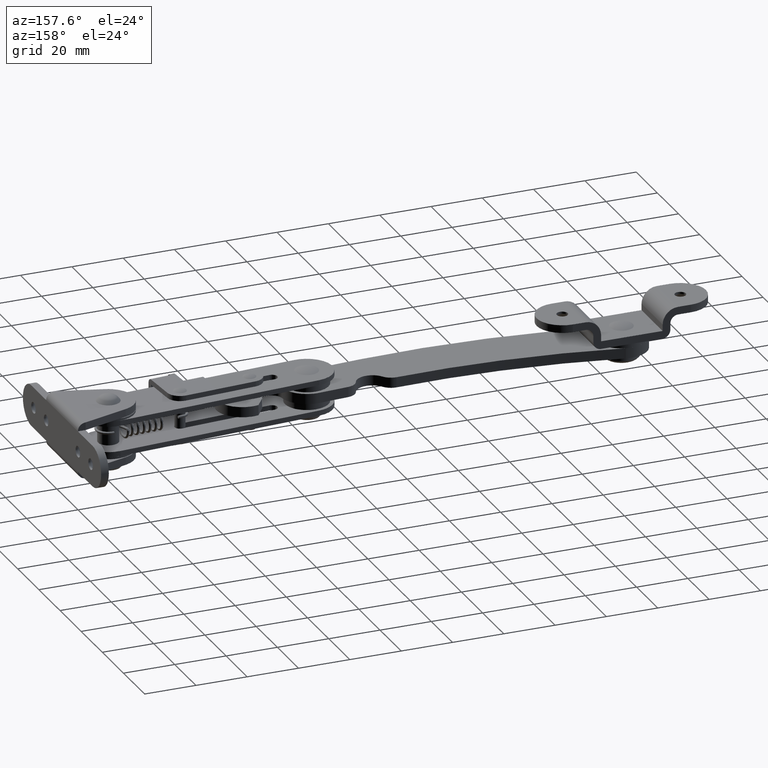
[diagram: clean part render]
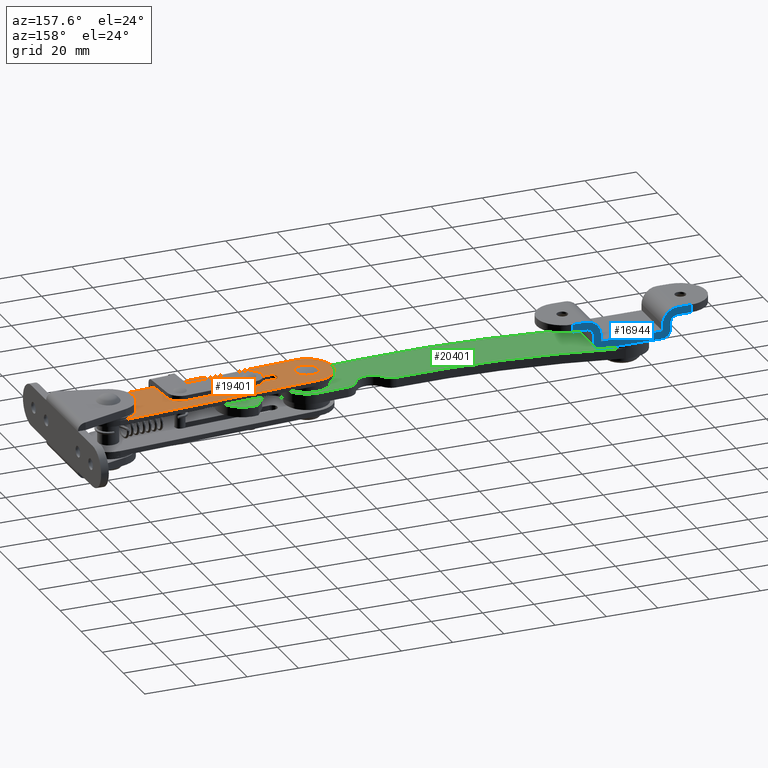
[diagram: same view with three faces highlighted in distinct colors, each labeled with its STEP entity id]
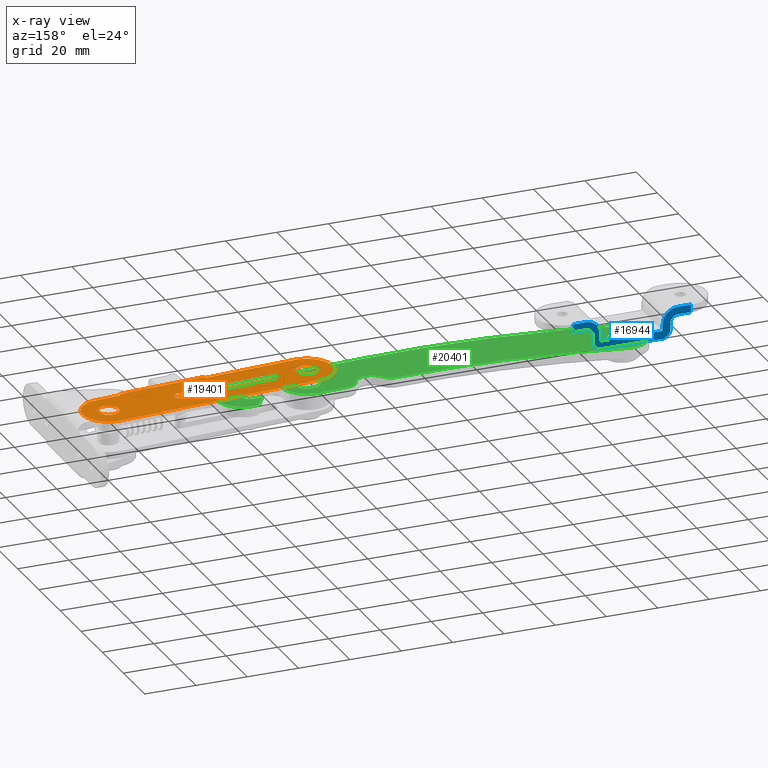
[diagram: x-ray of the same camera — body ghosted, the three highlighted faces saturated]
A machine part, auxiliary view with three faces highlighted in distinct colors.
The next image is the same camera in x-ray (body ghosted, the three faces saturated) — at least one of them is partly hidden behind the body in this view.
Their STEP definitions:

[orange] entity #19401 — the highlighted face is a freeform B-spline surface patch.
#17565=CARTESIAN_POINT('',(-2.803635939804121,-2.853001204814787,6.999999999999999));
#17566=VERTEX_POINT('',#17565);
#17572=CARTESIAN_POINT('',(0.000004821915548,-3.999999999997093,6.999999999999999));
#17573=VERTEX_POINT('',#17572);
#17574=CARTESIAN_POINT('',(-2.803635939804121,-2.853001204814787,6.999999999999999));
#17575=CARTESIAN_POINT('',(-2.457653230056592,-3.193589087837221,7.000000000000031));
#17576=CARTESIAN_POINT('',(-1.585129559547834,-3.782638026438386,6.999999999999939));
#17577=CARTESIAN_POINT('',(-0.550246826876898,-4.000723855877902,7.000000000000014));
#17578=CARTESIAN_POINT('',(0.000004821915548,-3.999999999997093,6.999999999999999));
#17579=B_SPLINE_CURVE_WITH_KNOTS('',3,(#17574,#17575,#17576,#17577,#17578),.UNSPECIFIED.,.F.,.U.,(4,1,4),(0.000000127606560,1.456330673525438,3.106766276561753),.UNSPECIFIED.);
#17580=EDGE_CURVE('',#17566,#17573,#17579,.T.);
#17582=CARTESIAN_POINT('',(4.0,0.0,7.0));
#17583=VERTEX_POINT('',#17582);
#17584=CARTESIAN_POINT('',(0.000004821915548,-3.999999999997093,6.999999999999999));
#17585=CARTESIAN_POINT('',(0.523686233272881,-4.000563494745419,6.999999999999996));
#17586=CARTESIAN_POINT('',(1.406801941243089,-3.823903950449423,7.000000000000006));
#17587=CARTESIAN_POINT('',(2.576753049751936,-3.142159980752278,6.999999999999971));
#17588=CARTESIAN_POINT('',(3.357275490981325,-2.280955783564042,7.000000000000065));
#17589=CARTESIAN_POINT('',(3.878771313333197,-1.177965411153601,6.999999999999941));
#17590=CARTESIAN_POINT('',(4.000198478726332,-0.425440397542323,7.000000000000036));
#17591=CARTESIAN_POINT('',(4.0,0.0,7.0));
#17592=B_SPLINE_CURVE_WITH_KNOTS('',3,(#17584,#17585,#17586,#17587,#17588,#17589,#17590,#17591),.UNSPECIFIED.,.F.,.U.,(4,1,1,1,1,4),(0.000000418732931,1.570836932140976,2.650786218409963,4.025251273544925,5.007047381488420,6.283340259591173),.UNSPECIFIED.);
#17593=EDGE_CURVE('',#17573,#17583,#17592,.T.);
#17595=CARTESIAN_POINT('',(-0.000004821915573,3.999999999997093,7.0));
#17596=VERTEX_POINT('',#17595);
#17597=CARTESIAN_POINT('',(4.0,0.0,7.0));
#17598=CARTESIAN_POINT('',(4.000214626761705,0.425437871355246,6.999999999999990));
#17599=CARTESIAN_POINT('',(3.857802437885347,1.308944964842368,7.000000000000012));
#17600=CARTESIAN_POINT('',(3.278708600194201,2.392633720960720,7.000000000000005));
#17601=CARTESIAN_POINT('',(2.532352916099163,3.138543639930477,7.000000000000004));
#17602=CARTESIAN_POINT('',(1.754478423040038,3.631144838412840,6.999999999999988));
#17603=CARTESIAN_POINT('',(0.916295584448559,3.931074061541739,7.000000000000028));
#17604=CARTESIAN_POINT('',(0.294515028895691,4.000038652594160,6.999999999999983));
#17605=CARTESIAN_POINT('',(-0.000004821915573,3.999999999997093,7.0));
#17606=B_SPLINE_CURVE_WITH_KNOTS('',3,(#17597,#17598,#17599,#17600,#17601,#17602,#17603,#17604,#17605),.UNSPECIFIED.,.F.,.U.,(4,1,1,1,1,1,4),(0.000000412133518,1.276301862692681,2.650788500448993,3.632549552959090,4.417967056029697,5.399764012246425,6.283345695149453),.UNSPECIFIED.);
#17607=EDGE_CURVE('',#17583,#17596,#17606,.T.);
#17609=CARTESIAN_POINT('',(-2.853002909417130,2.803637644421669,7.0));
#17610=VERTEX_POINT('',#17609);
#17611=CARTESIAN_POINT('',(-0.000004821915573,3.999999999997093,7.0));
#17612=CARTESIAN_POINT('',(-0.297801997875034,4.000044311668203,7.000000000000003));
#17613=CARTESIAN_POINT('',(-0.926464027903177,3.929495428424444,6.999999999999998));
#17614=CARTESIAN_POINT('',(-1.929765921924888,3.566321050167121,7.000000000000006));
#17615=CARTESIAN_POINT('',(-2.551633639237704,3.110601350385875,6.999999999999995));
#17616=CARTESIAN_POINT('',(-2.853002909417130,2.803637644421669,7.0));
#17617=B_SPLINE_CURVE_WITH_KNOTS('',3,(#17611,#17612,#17613,#17614,#17615,#17616),.UNSPECIFIED.,.F.,.U.,(4,1,1,4),(0.000000105726838,0.893418072074469,1.886064066487340,3.176576747122944),.UNSPECIFIED.);
#17618=EDGE_CURVE('',#17596,#17610,#17617,.T.);
#17699=CARTESIAN_POINT('',(-4.0,0.0,7.0));
#17700=VERTEX_POINT('',#17699);
#17701=CARTESIAN_POINT('',(-2.853002909417130,2.803637644421669,7.0));
#17702=CARTESIAN_POINT('',(-3.193546349118127,2.457625450715434,6.999999999999993));
#17703=CARTESIAN_POINT('',(-3.782708819665304,1.585176198413204,7.000000000000017));
#17704=CARTESIAN_POINT('',(-4.000697569853778,0.550235337953058,6.999999999999991));
#17705=CARTESIAN_POINT('',(-4.0,0.0,7.0));
#17706=B_SPLINE_CURVE_WITH_KNOTS('',3,(#17701,#17702,#17703,#17704,#17705),.UNSPECIFIED.,.F.,.U.,(4,1,4),(0.000000127495089,1.456328861650192,3.106762411482833),.UNSPECIFIED.);
#17707=EDGE_CURVE('',#17610,#17700,#17706,.T.);
#17709=CARTESIAN_POINT('',(-4.0,0.0,7.0));
#17710=CARTESIAN_POINT('',(-4.000440086677357,-0.496393680425217,7.000000000000018));
#17711=CARTESIAN_POINT('',(-3.800285917980837,-1.554876885580283,6.999999999999965));
#17712=CARTESIAN_POINT('',(-3.205419071362933,-2.459168468411741,7.000000000000024));
#17713=CARTESIAN_POINT('',(-2.803635939804121,-2.853001204814787,6.999999999999999));
#17714=B_SPLINE_CURVE_WITH_KNOTS('',3,(#17709,#17710,#17711,#17712,#17713),.UNSPECIFIED.,.F.,.U.,(4,1,4),(0.000000105609228,1.489047249577630,3.176580633280222),.UNSPECIFIED.);
#17715=EDGE_CURVE('',#17700,#17566,#17714,.T.);
#17949=CARTESIAN_POINT('',(-82.591990670033709,-8.668422204814796,7.000000000000001));
#17950=VERTEX_POINT('',#17949);
#17956=CARTESIAN_POINT('',(-79.788349908314061,-9.815420999997095,7.000000000000001));
#17957=VERTEX_POINT('',#17956);
#17958=CARTESIAN_POINT('',(-82.591990670033709,-8.668422204814796,7.000000000000001));
#17959=CARTESIAN_POINT('',(-82.246011969962666,-9.009006991405592,6.999999999999990));
#17960=CARTESIAN_POINT('',(-81.373469643274248,-9.598055747893580,7.000000000000041));
#17961=CARTESIAN_POINT('',(-80.338612207162797,-9.816168957304031,6.999999999999974));
#17962=CARTESIAN_POINT('',(-79.788349908314061,-9.815420999997095,7.000000000000001));
#17963=B_SPLINE_CURVE_WITH_KNOTS('',3,(#17958,#17959,#17960,#17961,#17962),.UNSPECIFIED.,.F.,.U.,(4,1,4),(0.000000127607026,1.456330673525437,3.106766276561729),.UNSPECIFIED.);
#17964=EDGE_CURVE('',#17950,#17957,#17963,.T.);
#17966=CARTESIAN_POINT('',(-75.788354730229585,-5.815421000000001,7.0));
#17967=VERTEX_POINT('',#17966);
#17968=CARTESIAN_POINT('',(-79.788349908314061,-9.815420999997095,7.000000000000001));
#17969=CARTESIAN_POINT('',(-79.264646248144132,-9.815972000103891,7.000000000000005));
#17970=CARTESIAN_POINT('',(-78.479694399686011,-9.658950837574446,7.000000000000008));
#17971=CARTESIAN_POINT('',(-77.580729963323861,-9.178183077803567,6.999999999999990));
#17972=CARTESIAN_POINT('',(-76.939647547323176,-8.665114191693071,7.000000000000012));
#17973=CARTESIAN_POINT('',(-76.290868965606847,-7.875166100449031,6.999999999999988));
#17974=CARTESIAN_POINT('',(-75.871637321696397,-6.862680779884204,7.000000000000014));
#17975=CARTESIAN_POINT('',(-75.788342088633613,-6.109931554698752,6.999999999999999));
#17976=CARTESIAN_POINT('',(-75.788354730229585,-5.815421000000001,7.0));
#17977=B_SPLINE_CURVE_WITH_KNOTS('',3,(#17968,#17969,#17970,#17971,#17972,#17973,#17974,#17975,#17976),.UNSPECIFIED.,.F.,.U.,(4,1,1,1,1,1,4),(0.000000418726386,1.570836932136186,2.356297784619678,3.043548503761381,4.025251273542936,5.399759337141894,6.283340259591253),.UNSPECIFIED.);
#17978=EDGE_CURVE('',#17957,#17967,#17977,.T.);
#17980=CARTESIAN_POINT('',(-79.788359552145181,-1.815421000002907,7.0));
#17981=VERTEX_POINT('',#17980);
#17982=CARTESIAN_POINT('',(-75.788354730229585,-5.815421000000001,7.0));
#17983=CARTESIAN_POINT('',(-75.788116034419843,-5.389967021496952,7.000000000000010));
#17984=CARTESIAN_POINT('',(-75.920109651556714,-4.571968319226662,6.999999999999986));
#17985=CARTESIAN_POINT('',(-76.410898218707047,-3.596865849101398,7.000000000000012));
#17986=CARTESIAN_POINT('',(-77.012430815882453,-2.899783688168353,6.999999999999996));
#17987=CARTESIAN_POINT('',(-77.738196187533887,-2.333176209523847,7.000000000000003));
#17988=CARTESIAN_POINT('',(-78.675727146658986,-1.917631850011731,7.000000000000012));
#17989=CARTESIAN_POINT('',(-79.428390381737827,-1.815316167033623,6.999999999999986));
#17990=CARTESIAN_POINT('',(-79.788359552145181,-1.815421000002907,7.0));
#17991=B_SPLINE_CURVE_WITH_KNOTS('',3,(#17982,#17983,#17984,#17985,#17986,#17987,#17988,#17989,#17990),.UNSPECIFIED.,.F.,.U.,(4,1,1,1,1,1,4),(0.000000412136938,1.276301862694898,2.454486344327436,3.239792812931488,4.025254761392850,5.203425366744507,6.283345695149471),.UNSPECIFIED.);
#17992=EDGE_CURVE('',#17967,#17981,#17991,.T.);
#17994=CARTESIAN_POINT('',(-82.641357639646714,-3.011783355578324,7.0));
#17995=VERTEX_POINT('',#17994);
#17996=CARTESIAN_POINT('',(-79.788359552145181,-1.815421000002907,7.0));
#17997=CARTESIAN_POINT('',(-80.086156374471969,-1.815379241837625,6.999999999999999));
#17998=CARTESIAN_POINT('',(-80.714825154178456,-1.885909353424187,7.000000000000004));
#17999=CARTESIAN_POINT('',(-81.718098212313876,-2.249144299000715,7.000000000000007));
#18000=CARTESIAN_POINT('',(-82.340008391094557,-2.704784316640864,6.999999999999992));
#18001=CARTESIAN_POINT('',(-82.641357639646714,-3.011783355578324,7.0));
#18002=B_SPLINE_CURVE_WITH_KNOTS('',3,(#17996,#17997,#17998,#17999,#18000,#18001),.UNSPECIFIED.,.F.,.U.,(4,1,1,4),(0.000000105727633,0.893418072074423,1.886064066487308,3.176576747122930),.UNSPECIFIED.);
#18003=EDGE_CURVE('',#17981,#17995,#18002,.T.);
#18084=CARTESIAN_POINT('',(-83.788354730229599,-5.815421000000001,7.0));
#18085=VERTEX_POINT('',#18084);
#18086=CARTESIAN_POINT('',(-82.641357639646714,-3.011783355578324,7.0));
#18087=CARTESIAN_POINT('',(-82.868254185590928,-3.242550973178310,7.000000000000003));
#18088=CARTESIAN_POINT('',(-83.245591482482013,-3.733726283889478,7.0));
#18089=CARTESIAN_POINT('',(-83.674955935628020,-4.682886804414928,6.999999999999993));
#18090=CARTESIAN_POINT('',(-83.788594317952729,-5.394689019468798,7.000000000000007));
#18091=CARTESIAN_POINT('',(-83.788354730229599,-5.815421000000001,7.0));
#18092=B_SPLINE_CURVE_WITH_KNOTS('',3,(#18086,#18087,#18088,#18089,#18090,#18091),.UNSPECIFIED.,.F.,.U.,(4,1,1,4),(0.000000127495364,0.970876190213606,1.844616919209537,3.106762411482846),.UNSPECIFIED.);
#18093=EDGE_CURVE('',#17995,#18085,#18092,.T.);
#18095=CARTESIAN_POINT('',(-83.788354730229599,-5.815421000000001,7.0));
#18096=CARTESIAN_POINT('',(-83.789067712413583,-6.378034671021312,6.999999999999996));
#18097=CARTESIAN_POINT('',(-83.561031150587411,-7.436150841089881,7.000000000000008));
#18098=CARTESIAN_POINT('',(-82.946349025875165,-8.320808930255073,6.999999999999997));
#18099=CARTESIAN_POINT('',(-82.591990670033709,-8.668422204814796,7.000000000000001));
#18100=B_SPLINE_CURVE_WITH_KNOTS('',3,(#18095,#18096,#18097,#18098,#18099),.UNSPECIFIED.,.F.,.U.,(4,1,4),(0.000000105610331,1.687533489314797,3.176580633280233),.UNSPECIFIED.);
#18101=EDGE_CURVE('',#18085,#17950,#18100,.T.);
#18180=CARTESIAN_POINT('',(-9.173923341329029,-11.697826223630200,7.0));
#18181=VERTEX_POINT('',#18180);
#18193=CARTESIAN_POINT('',(-43.084019902997852,-14.169384664210220,7.0));
#18194=VERTEX_POINT('',#18193);
#18195=CARTESIAN_POINT('',(-9.173923341329029,-11.697826223630200,7.0));
#18196=CARTESIAN_POINT('',(-43.084019902997852,-14.169384664210220,7.0));
#18197=QUASI_UNIFORM_CURVE('',1,(#18195,#18196),.UNSPECIFIED.,.F.,.U.);
#18198=EDGE_CURVE('',#18181,#18194,#18197,.T.);
#18450=CARTESIAN_POINT('',(-65.672750999999792,-6.892174000000000,7.0));
#18451=VERTEX_POINT('',#18450);
#18483=CARTESIAN_POINT('',(-65.978060204992389,-2.703285568763505,7.0));
#18484=VERTEX_POINT('',#18483);
#18490=CARTESIAN_POINT('',(-67.919849802963483,-4.950384264181945,6.999999999999999));
#18491=VERTEX_POINT('',#18490);
#18492=CARTESIAN_POINT('',(-65.978060204992389,-2.703285568763505,7.0));
#18493=CARTESIAN_POINT('',(-66.252274386174818,-2.722998024258449,6.999999999999990));
#18494=CARTESIAN_POINT('',(-66.724886035661569,-2.853816368372768,7.000000000000023));
#18495=CARTESIAN_POINT('',(-67.307434059674804,-3.263357483447373,6.999999999999978));
#18496=CARTESIAN_POINT('',(-67.644926527248998,-3.706188670303646,7.000000000000011));
#18497=CARTESIAN_POINT('',(-67.889996617945442,-4.276580966490457,7.000000000000005));
#18498=CARTESIAN_POINT('',(-67.940158783843302,-4.676183002369537,6.999999999999997));
#18499=CARTESIAN_POINT('',(-67.919849802963483,-4.950384264181945,6.999999999999999));
#18500=B_SPLINE_CURVE_WITH_KNOTS('',3,(#18492,#18493,#18494,#18495,#18496,#18497,#18498,#18499),.UNSPECIFIED.,.F.,.U.,(4,1,1,1,1,4),(0.000000588083346,0.824689159478014,1.443264730201089,2.113249446446378,2.474066383029739,3.298754981320576),.UNSPECIFIED.);
#18501=EDGE_CURVE('',#18484,#18491,#18500,.T.);
#18503=CARTESIAN_POINT('',(-67.919849802963483,-4.950384264181945,6.999999999999999));
#18504=CARTESIAN_POINT('',(-67.903710045321830,-5.173145028080282,6.999999999999999));
#18505=CARTESIAN_POINT('',(-67.791495747010984,-5.647302161896618,7.000000000000025));
#18506=CARTESIAN_POINT('',(-67.401419352716985,-6.248201521819914,6.999999999999945));
#18507=CARTESIAN_POINT('',(-66.916930461311537,-6.617240292291434,7.000000000000080));
#18508=CARTESIAN_POINT('',(-66.346540556391048,-6.862299884778437,6.999999999999923));
#18509=CARTESIAN_POINT('',(-65.946959638631114,-6.912492719818771,7.000000000000036));
#18510=CARTESIAN_POINT('',(-65.672750999999792,-6.892174000000000,7.0));
#18511=B_SPLINE_CURVE_WITH_KNOTS('',3,(#18503,#18504,#18505,#18506,#18507,#18508,#18509,#18510),.UNSPECIFIED.,.F.,.U.,(4,1,1,1,1,4),(0.000000587918419,0.670044163929254,1.443264789957717,2.113249534259067,2.474066485484756,3.298755118023712),.UNSPECIFIED.);
#18512=EDGE_CURVE('',#18491,#18451,#18511,.T.);
#18524=CARTESIAN_POINT('',(-28.665039612212599,-4.194848652744571,7.0));
#18525=VERTEX_POINT('',#18524);
#18537=CARTESIAN_POINT('',(-65.672750999999792,-6.892174000000000,7.0));
#18538=CARTESIAN_POINT('',(-28.665039612212599,-4.194848652744571,7.0));
#18539=QUASI_UNIFORM_CURVE('',1,(#18537,#18538),.UNSPECIFIED.,.F.,.U.);
#18540=EDGE_CURVE('',#18451,#18525,#18539,.T.);
#18565=CARTESIAN_POINT('',(-28.823556999999902,-0.000840000000004,7.0));
#18566=VERTEX_POINT('',#18565);
#18597=CARTESIAN_POINT('',(-26.725055366181660,-2.021524850992003,7.000000000000001));
#18598=VERTEX_POINT('',#18597);
#18599=CARTESIAN_POINT('',(-28.665039612212599,-4.194848652744571,7.0));
#18600=CARTESIAN_POINT('',(-28.414202068307631,-4.176070625167307,6.999999999999999));
#18601=CARTESIAN_POINT('',(-28.002148619631051,-4.068179755915073,6.999999999999996));
#18602=CARTESIAN_POINT('',(-27.442155959191581,-3.721380652854530,7.000000000000016));
#18603=CARTESIAN_POINT('',(-27.068534300266240,-3.302780294711624,6.999999999999992));
#18604=CARTESIAN_POINT('',(-26.780536294752899,-2.711389570092007,7.000000000000006));
#18605=CARTESIAN_POINT('',(-26.714630079807421,-2.289652894635332,7.000000000000002));
#18606=CARTESIAN_POINT('',(-26.725055366181660,-2.021524850992003,7.000000000000001));
#18607=B_SPLINE_CURVE_WITH_KNOTS('',3,(#18599,#18600,#18601,#18602,#18603,#18604,#18605,#18606),.UNSPECIFIED.,.F.,.U.,(4,1,1,1,1,4),(0.000000521511087,0.754548264946777,1.257590606243966,1.961826398895063,2.414561370108273,3.219414941206302),.UNSPECIFIED.);
#18608=EDGE_CURVE('',#18525,#18598,#18607,.T.);
#18610=CARTESIAN_POINT('',(-26.725055366181660,-2.021524850992003,7.000000000000001));
#18611=CARTESIAN_POINT('',(-26.737603126594980,-1.669430281640691,6.999999999999992));
#18612=CARTESIAN_POINT('',(-26.876755319139448,-1.205613970211585,7.000000000000004));
#18613=CARTESIAN_POINT('',(-27.260827239686630,-0.673383544952410,6.999999999999996));
#18614=CARTESIAN_POINT('',(-27.638632468193538,-0.334726621776848,7.000000000000009));
#18615=CARTESIAN_POINT('',(-28.186461581378161,-0.066696419806099,6.999999999999996));
#18616=CARTESIAN_POINT('',(-28.605570799553409,-0.000725955363068,7.000000000000013));
#18617=CARTESIAN_POINT('',(-28.823556999999902,-0.000840000000004,7.0));
#18618=B_SPLINE_CURVE_WITH_KNOTS('',3,(#18610,#18611,#18612,#18613,#18614,#18615,#18616,#18617),.UNSPECIFIED.,.F.,.U.,(4,1,1,1,1,4),(0.000000521509605,1.056394782968894,1.408551301281132,1.961826566176656,2.565486391473804,3.219415215720409),.UNSPECIFIED.);
#18619=EDGE_CURVE('',#18598,#18566,#18618,.T.);
#18636=CARTESIAN_POINT('',(-28.823556999999902,-0.000840000000004,7.0));
#18637=CARTESIAN_POINT('',(-65.978060204992389,-2.703285568763505,7.0));
#18638=QUASI_UNIFORM_CURVE('',1,(#18636,#18637),.UNSPECIFIED.,.F.,.U.);
#18639=EDGE_CURVE('',#18566,#18484,#18638,.T.);
#18732=CARTESIAN_POINT('',(-9.246615999999900,-10.700472000000000,7.0));
#18733=VERTEX_POINT('',#18732);
#18739=CARTESIAN_POINT('',(-9.246615999999900,-10.700472000000000,7.0));
#18740=CARTESIAN_POINT('',(-9.173923341329029,-11.697826223630200,7.0));
#18741=QUASI_UNIFORM_CURVE('',1,(#18739,#18740),.UNSPECIFIED.,.F.,.U.);
#18742=EDGE_CURVE('',#18733,#18181,#18741,.T.);
#18769=CARTESIAN_POINT('',(-43.156713000000003,-13.172029000000000,7.0));
#18770=VERTEX_POINT('',#18769);
#18771=CARTESIAN_POINT('',(-43.084019902997852,-14.169384664210220,7.0));
#18772=CARTESIAN_POINT('',(-43.156713000000003,-13.172029000000000,7.0));
#18773=QUASI_UNIFORM_CURVE('',1,(#18771,#18772),.UNSPECIFIED.,.F.,.U.);
#18774=EDGE_CURVE('',#18194,#18770,#18773,.T.);
#19033=CARTESIAN_POINT('',(0.726928414614539,-9.973543520195110,7.0));
#19034=VERTEX_POINT('',#19033);
#19040=CARTESIAN_POINT('',(0.726928414614539,-9.973543520195110,7.0));
#19041=CARTESIAN_POINT('',(-9.246615999999900,-10.700472000000000,7.0));
#19042=QUASI_UNIFORM_CURVE('',1,(#19040,#19041),.UNSPECIFIED.,.F.,.U.);
#19043=EDGE_CURVE('',#19034,#18733,#19042,.T.);
#19060=CARTESIAN_POINT('',(-79.061422999999792,-15.788964999999999,7.0));
#19061=VERTEX_POINT('',#19060);
#19062=CARTESIAN_POINT('',(-43.156713000000003,-13.172029000000000,7.0));
#19063=CARTESIAN_POINT('',(-79.061422999999792,-15.788964999999999,7.0));
#19064=QUASI_UNIFORM_CURVE('',1,(#19062,#19063),.UNSPECIFIED.,.F.,.U.);
#19065=EDGE_CURVE('',#18770,#19061,#19064,.T.);
#19132=CARTESIAN_POINT('',(-89.762183124712379,-6.538401306877178,6.999999999999999));
#19133=VERTEX_POINT('',#19132);
#19134=CARTESIAN_POINT('',(-89.762183124712379,-6.538401306877178,6.999999999999999));
#19135=CARTESIAN_POINT('',(-89.720802352134200,-7.109717307134114,6.999999999999997));
#19136=CARTESIAN_POINT('',(-89.526591196198055,-8.326350640608423,7.000000000000001));
#19137=CARTESIAN_POINT('',(-88.933028696879362,-9.991630431483594,7.000000000000001));
#19138=CARTESIAN_POINT('',(-87.994132830735907,-11.629874654154870,7.000000000000007));
#19139=CARTESIAN_POINT('',(-86.608777863701917,-13.259993676225220,6.999999999999975));
#19140=CARTESIAN_POINT('',(-84.669344428702473,-14.664973082507499,7.000000000000009));
#19141=CARTESIAN_POINT('',(-82.062905201462627,-15.691644291101159,6.999999999999998));
#19142=CARTESIAN_POINT('',(-80.163286945437918,-15.869945239592299,7.0));
#19143=CARTESIAN_POINT('',(-79.061422999999792,-15.788964999999999,7.0));
#19144=B_SPLINE_CURVE_WITH_KNOTS('',3,(#19134,#19135,#19136,#19137,#19138,#19139,#19140,#19141,#19142,#19143),.UNSPECIFIED.,.F.,.U.,(4,1,1,1,1,1,1,4),(0.000000289707129,1.718448053741968,3.682502809735759,5.278265377301398,7.365094574938590,10.065503608441810,12.397782766424021,15.712020949939239),.UNSPECIFIED.);
#19145=EDGE_CURVE('',#19133,#19061,#19144,.T.);
#19147=CARTESIAN_POINT('',(-80.507386671215201,4.158698164097540,7.0));
#19148=VERTEX_POINT('',#19147);
#19149=CARTESIAN_POINT('',(-80.507386671215201,4.158698164097540,7.0));
#19150=CARTESIAN_POINT('',(-81.119546856558841,4.114619150272836,7.000000000000007));
#19151=CARTESIAN_POINT('',(-82.335679137480511,3.913241400943183,7.000000000000002));
#19152=CARTESIAN_POINT('',(-84.305674974456565,3.198489819933209,6.999999999999996));
#19153=CARTESIAN_POINT('',(-85.939123644598041,2.153594651482697,7.000000000000012));
#19154=CARTESIAN_POINT('',(-87.328795240985656,0.817871018221263,6.999999999999980));
#19155=CARTESIAN_POINT('',(-88.218951688540955,-0.363517538392372,7.000000000000075));
#19156=CARTESIAN_POINT('',(-88.974515437599337,-1.772430245530352,6.999999999999857));
#19157=CARTESIAN_POINT('',(-89.683239258287514,-3.743423828253903,7.000000000000095));
#19158=CARTESIAN_POINT('',(-89.842666117698769,-5.436508709366779,6.999999999999996));
#19159=CARTESIAN_POINT('',(-89.762183124712379,-6.538401306877178,6.999999999999999));
#19160=B_SPLINE_CURVE_WITH_KNOTS('',3,(#19149,#19150,#19151,#19152,#19153,#19154,#19155,#19156,#19157,#19158,#19159),.UNSPECIFIED.,.F.,.U.,(4,1,1,1,1,1,1,1,4),(0.000000289735102,1.841240841329476,3.682502793352692,6.260273448476378,7.610577912738634,9.451757709387586,10.679255777429230,12.397782711208031,15.712020879959280),.UNSPECIFIED.);
#19161=EDGE_CURVE('',#19148,#19133,#19160,.T.);
#19177=CARTESIAN_POINT('',(-0.726927525072368,9.973543424808501,7.0));
#19178=VERTEX_POINT('',#19177);
#19179=CARTESIAN_POINT('',(-80.507386671215201,4.158698164097540,7.0));
#19180=CARTESIAN_POINT('',(-0.726927525072368,9.973543424808501,7.0));
#19181=QUASI_UNIFORM_CURVE('',1,(#19179,#19180),.UNSPECIFIED.,.F.,.U.);
#19182=EDGE_CURVE('',#19148,#19178,#19181,.T.);
#19247=CARTESIAN_POINT('',(9.973543571125104,0.726930969810131,7.0));
#19248=VERTEX_POINT('',#19247);
#19249=CARTESIAN_POINT('',(9.973543571125104,0.726930969810131,7.0));
#19250=CARTESIAN_POINT('',(9.928989329652403,1.338901449117109,6.999999999999996));
#19251=CARTESIAN_POINT('',(9.720020795361952,2.595108005268863,7.000000000000004));
#19252=CARTESIAN_POINT('',(9.062846235242567,4.368006754284931,6.999999999999985));
#19253=CARTESIAN_POINT('',(8.167963132470945,5.843162825033837,7.000000000000007));
#19254=CARTESIAN_POINT('',(6.946240312787646,7.279968899295540,7.000000000000091));
#19255=CARTESIAN_POINT('',(5.402796141572022,8.517478854906635,6.999999999999782));
#19256=CARTESIAN_POINT('',(3.624044837093386,9.373899405891713,7.000000000000228));
#19257=CARTESIAN_POINT('',(1.612739692304511,9.945730006246558,7.000000000000014));
#19258=CARTESIAN_POINT('',(0.211451690068206,10.042323681927900,7.000000000000100));
#19259=CARTESIAN_POINT('',(-0.726927525072368,9.973543424808501,7.0));
#19260=B_SPLINE_CURVE_WITH_KNOTS('',3,(#19249,#19250,#19251,#19252,#19253,#19254,#19255,#19256,#19257,#19258,#19259),.UNSPECIFIED.,.F.,.U.,(4,1,1,1,1,1,1,1,4),(0.000000289937345,1.840776639198792,3.804293800040696,5.645103240014255,6.995066254529514,9.449374725433639,11.535601459747760,12.885526134460880,15.708059534344860),.UNSPECIFIED.);
#19261=EDGE_CURVE('',#19248,#19178,#19260,.T.);
#19263=CARTESIAN_POINT('',(0.726928414614539,-9.973543520195110,7.0));
#19264=CARTESIAN_POINT('',(1.502103734540659,-9.917221526502049,6.999999999999997));
#19265=CARTESIAN_POINT('',(2.836836416477726,-9.661125922475792,6.999999999999998));
#19266=CARTESIAN_POINT('',(4.772122994051214,-8.861567843110981,7.000000000000012));
#19267=CARTESIAN_POINT('',(6.244457690801477,-7.879648031234863,6.999999999999945));
#19268=CARTESIAN_POINT('',(7.544344800263167,-6.628775386616056,7.000000000000078));
#19269=CARTESIAN_POINT('',(8.705532007753471,-5.086223979136549,6.999999999999957));
#19270=CARTESIAN_POINT('',(9.826276223301578,-2.605322725702352,7.000000000000042));
#19271=CARTESIAN_POINT('',(10.063887474028880,-0.497089875163545,7.000000000000022));
#19272=CARTESIAN_POINT('',(9.973543571125104,0.726930969810131,7.0));
#19273=B_SPLINE_CURVE_WITH_KNOTS('',3,(#19263,#19264,#19265,#19266,#19267,#19268,#19269,#19270,#19271,#19272),.UNSPECIFIED.,.F.,.U.,(4,1,1,1,1,1,1,4),(0.000000288861060,2.331625740322032,4.049736038648693,6.258696455185627,7.608660757094444,9.449376807313090,12.026490630337360,15.708062989064860),.UNSPECIFIED.);
#19274=EDGE_CURVE('',#19034,#19248,#19273,.T.);
#19360=CARTESIAN_POINT('',(14.982404949095260,11.287282634226971,7.0));
#19361=CARTESIAN_POINT('',(-94.770721154813899,11.287282634226971,7.0));
#19362=CARTESIAN_POINT('',(14.982404949095260,-17.102762366052151,7.0));
#19363=CARTESIAN_POINT('',(-94.770721154813899,-17.102762366052151,7.0));
#19364=B_SPLINE_SURFACE_WITH_KNOTS('',1,1,((#19360,#19362),(#19361,#19363)),.UNSPECIFIED.,.F.,.F.,.U.,(2,2),(2,2),(0.0,109.753126103909200),(0.0,28.390045000279120),.UNSPECIFIED.);
#19365=ORIENTED_EDGE('',*,*,#18742,.F.);
#19366=ORIENTED_EDGE('',*,*,#19043,.F.);
#19367=ORIENTED_EDGE('',*,*,#19274,.T.);
#19368=ORIENTED_EDGE('',*,*,#19261,.T.);
#19369=ORIENTED_EDGE('',*,*,#19182,.F.);
#19370=ORIENTED_EDGE('',*,*,#19161,.T.);
#19371=ORIENTED_EDGE('',*,*,#19145,.T.);
#19372=ORIENTED_EDGE('',*,*,#19065,.F.);
#19373=ORIENTED_EDGE('',*,*,#18774,.F.);
#19374=ORIENTED_EDGE('',*,*,#18198,.F.);
#19375=EDGE_LOOP('',(#19365,#19366,#19367,#19368,#19369,#19370,#19371,#19372,#19373,#19374));
#19376=FACE_OUTER_BOUND('',#19375,.T.);
#19377=ORIENTED_EDGE('',*,*,#18639,.F.);
#19378=ORIENTED_EDGE('',*,*,#18619,.F.);
#19379=ORIENTED_EDGE('',*,*,#18608,.F.);
#19380=ORIENTED_EDGE('',*,*,#18540,.F.);
#19381=ORIENTED_EDGE('',*,*,#18512,.F.);
#19382=ORIENTED_EDGE('',*,*,#18501,.F.);
#19383=EDGE_LOOP('',(#19377,#19378,#19379,#19380,#19381,#19382));
#19384=FACE_BOUND('',#19383,.T.);
#19385=ORIENTED_EDGE('',*,*,#17978,.F.);
#19386=ORIENTED_EDGE('',*,*,#17964,.F.);
#19387=ORIENTED_EDGE('',*,*,#18101,.F.);
#19388=ORIENTED_EDGE('',*,*,#18093,.F.);
#19389=ORIENTED_EDGE('',*,*,#18003,.F.);
#19390=ORIENTED_EDGE('',*,*,#17992,.F.);
#19391=EDGE_LOOP('',(#19385,#19386,#19387,#19388,#19389,#19390));
#19392=FACE_BOUND('',#19391,.T.);
#19393=ORIENTED_EDGE('',*,*,#17593,.F.);
#19394=ORIENTED_EDGE('',*,*,#17580,.F.);
#19395=ORIENTED_EDGE('',*,*,#17715,.F.);
#19396=ORIENTED_EDGE('',*,*,#17707,.F.);
#19397=ORIENTED_EDGE('',*,*,#17618,.F.);
#19398=ORIENTED_EDGE('',*,*,#17607,.F.);
#19399=EDGE_LOOP('',(#19393,#19394,#19395,#19396,#19397,#19398));
#19400=FACE_BOUND('',#19399,.T.);
#19401=ADVANCED_FACE('',(#19376,#19384,#19392,#19400),#19364,.T.);

[blue] entity #16944 — the highlighted face is a freeform B-spline surface patch.
#16470=CARTESIAN_POINT('',(-223.000000420197490,10.000007670518460,15.0));
#16471=VERTEX_POINT('',#16470);
#16486=CARTESIAN_POINT('',(-223.000000420197490,10.000007670518460,12.0));
#16487=VERTEX_POINT('',#16486);
#16488=CARTESIAN_POINT('',(-223.000000420197490,10.000007670518460,15.0));
#16489=CARTESIAN_POINT('',(-223.000000420197490,10.000007670518460,12.0));
#16490=QUASI_UNIFORM_CURVE('',1,(#16488,#16489),.UNSPECIFIED.,.F.,.U.);
#16491=EDGE_CURVE('',#16471,#16487,#16490,.T.);
#16527=CARTESIAN_POINT('',(-177.000000420187490,10.000007670518460,12.0));
#16528=VERTEX_POINT('',#16527);
#16543=CARTESIAN_POINT('',(-177.000000420187490,10.000007670518460,15.0));
#16544=VERTEX_POINT('',#16543);
#16545=CARTESIAN_POINT('',(-177.000000420187490,10.000007670518460,12.0));
#16546=CARTESIAN_POINT('',(-177.000000420187490,10.000007670518460,15.0));
#16547=QUASI_UNIFORM_CURVE('',1,(#16545,#16546),.UNSPECIFIED.,.F.,.U.);
#16548=EDGE_CURVE('',#16528,#16544,#16547,.T.);
#16785=CARTESIAN_POINT('',(-174.702300077528800,10.000007670518460,2.925575022289232));
#16786=CARTESIAN_POINT('',(-225.297701585400290,10.000007670518460,2.925575022289232));
#16787=CARTESIAN_POINT('',(-174.702300077528800,10.000007670518460,15.574425286164800));
#16788=CARTESIAN_POINT('',(-225.297701585400290,10.000007670518460,15.574425286164800));
#16789=B_SPLINE_SURFACE_WITH_KNOTS('',1,1,((#16785,#16787),(#16786,#16788)),.UNSPECIFIED.,.F.,.F.,.U.,(2,2),(2,2),(0.0,50.595401507871507),(0.0,12.648850263875570),.UNSPECIFIED.);
#16790=CARTESIAN_POINT('',(-218.000000420197490,10.000007670518420,15.0));
#16791=VERTEX_POINT('',#16790);
#16792=CARTESIAN_POINT('',(-218.000000420197490,10.000007670518420,15.0));
#16793=CARTESIAN_POINT('',(-223.000000420197490,10.000007670518460,15.0));
#16794=QUASI_UNIFORM_CURVE('',1,(#16792,#16793),.UNSPECIFIED.,.F.,.U.);
#16795=EDGE_CURVE('',#16791,#16471,#16794,.T.);
#16796=ORIENTED_EDGE('',*,*,#16795,.F.);
#16797=CARTESIAN_POINT('',(-212.000000420197490,10.000007670518420,9.0));
#16798=VERTEX_POINT('',#16797);
#16799=CARTESIAN_POINT('',(-218.000000420197490,10.000007670518420,15.0));
#16800=CARTESIAN_POINT('',(-217.361818942929010,10.000007670518420,15.000348763741570));
#16801=CARTESIAN_POINT('',(-216.331219763949290,10.000007670518420,14.833926732231070));
#16802=CARTESIAN_POINT('',(-215.023528615972910,10.000007670518400,14.254166649644731));
#16803=CARTESIAN_POINT('',(-214.055688213560900,10.000007670518469,13.572536027105890));
#16804=CARTESIAN_POINT('',(-213.239425724156800,10.000007670518359,12.715203936770020));
#16805=CARTESIAN_POINT('',(-212.658927067785410,10.000007670518430,11.798408922660601));
#16806=CARTESIAN_POINT('',(-212.150222805643610,10.000007670518430,10.570605192247109));
#16807=CARTESIAN_POINT('',(-211.999658087793310,10.000007670518389,9.638187369680045));
#16808=CARTESIAN_POINT('',(-212.000000420197490,10.000007670518420,9.0));
#16809=B_SPLINE_CURVE_WITH_KNOTS('',3,(#16799,#16800,#16801,#16802,#16803,#16804,#16805,#16806,#16807,#16808),.UNSPECIFIED.,.F.,.U.,(4,1,1,1,1,1,1,4),(0.000000163224991,1.914444521567987,3.092613275384285,4.270747428744197,5.448784424876255,6.626950513399637,7.510571264183883,9.425014466010438),.UNSPECIFIED.);
#16810=EDGE_CURVE('',#16791,#16798,#16809,.T.);
#16811=ORIENTED_EDGE('',*,*,#16810,.T.);
#16812=CARTESIAN_POINT('',(-212.000000420197490,10.000007670518420,6.500000000000000));
#16813=VERTEX_POINT('',#16812);
#16814=CARTESIAN_POINT('',(-212.000000420197490,10.000007670518420,6.500000000000000));
#16815=CARTESIAN_POINT('',(-212.000000420197490,10.000007670518420,9.0));
#16816=QUASI_UNIFORM_CURVE('',1,(#16814,#16815),.UNSPECIFIED.,.F.,.U.);
#16817=EDGE_CURVE('',#16813,#16798,#16816,.T.);
#16818=ORIENTED_EDGE('',*,*,#16817,.F.);
#16819=CARTESIAN_POINT('',(-188.000000420197490,10.000007670518420,6.500000000000000));
#16820=VERTEX_POINT('',#16819);
#16821=CARTESIAN_POINT('',(-188.000000420197490,10.000007670518420,6.500000000000000));
#16822=CARTESIAN_POINT('',(-212.000000420197490,10.000007670518420,6.500000000000000));
#16823=QUASI_UNIFORM_CURVE('',1,(#16821,#16822),.UNSPECIFIED.,.F.,.U.);
#16824=EDGE_CURVE('',#16820,#16813,#16823,.T.);
#16825=ORIENTED_EDGE('',*,*,#16824,.F.);
#16826=CARTESIAN_POINT('',(-188.000000420197490,10.000007670518420,9.0));
#16827=VERTEX_POINT('',#16826);
#16828=CARTESIAN_POINT('',(-188.000000420197490,10.000007670518420,9.0));
#16829=CARTESIAN_POINT('',(-188.000000420197490,10.000007670518420,6.500000000000000));
#16830=QUASI_UNIFORM_CURVE('',1,(#16828,#16829),.UNSPECIFIED.,.F.,.U.);
#16831=EDGE_CURVE('',#16827,#16820,#16830,.T.);
#16832=ORIENTED_EDGE('',*,*,#16831,.F.);
#16833=CARTESIAN_POINT('',(-182.000000420197490,10.000007670518420,15.0));
#16834=VERTEX_POINT('',#16833);
#16835=CARTESIAN_POINT('',(-188.000000420197490,10.000007670518420,9.0));
#16836=CARTESIAN_POINT('',(-188.000348668977490,10.000007670518430,9.638184717405624));
#16837=CARTESIAN_POINT('',(-187.833927777988690,10.000007670518380,10.668770948939430));
#16838=CARTESIAN_POINT('',(-187.254133850169210,10.000007670518460,11.976445026385450));
#16839=CARTESIAN_POINT('',(-186.459086047156600,10.000007670518370,13.105797449841541));
#16840=CARTESIAN_POINT('',(-185.482180806211600,10.000007670518450,13.948390648390520));
#16841=CARTESIAN_POINT('',(-184.310027769499410,10.000007670518400,14.574777840608370));
#16842=CARTESIAN_POINT('',(-183.227173126431010,10.000007670518430,14.917818457839889));
#16843=CARTESIAN_POINT('',(-182.392679741870210,10.000007670518420,15.000045107837771));
#16844=CARTESIAN_POINT('',(-182.000000420197490,10.000007670518420,15.0));
#16845=B_SPLINE_CURVE_WITH_KNOTS('',3,(#16835,#16836,#16837,#16838,#16839,#16840,#16841,#16842,#16843,#16844),.UNSPECIFIED.,.F.,.U.,(4,1,1,1,1,1,1,4),(0.000000163228217,1.914444521572200,3.092613275389064,4.270747428749642,6.037854555607339,6.921493693459198,8.246938530659222,9.425014466010268),.UNSPECIFIED.);
#16846=EDGE_CURVE('',#16827,#16834,#16845,.T.);
#16847=ORIENTED_EDGE('',*,*,#16846,.T.);
#16848=CARTESIAN_POINT('',(-177.000000420187490,10.000007670518460,15.0));
#16849=CARTESIAN_POINT('',(-182.000000420197490,10.000007670518420,15.0));
#16850=QUASI_UNIFORM_CURVE('',1,(#16848,#16849),.UNSPECIFIED.,.F.,.U.);
#16851=EDGE_CURVE('',#16544,#16834,#16850,.T.);
#16852=ORIENTED_EDGE('',*,*,#16851,.F.);
#16853=ORIENTED_EDGE('',*,*,#16548,.F.);
#16854=CARTESIAN_POINT('',(-182.000000420197490,10.000007670518420,12.0));
#16855=VERTEX_POINT('',#16854);
#16856=CARTESIAN_POINT('',(-182.000000420197490,10.000007670518420,12.0));
#16857=CARTESIAN_POINT('',(-177.000000420187490,10.000007670518460,12.0));
#16858=QUASI_UNIFORM_CURVE('',1,(#16856,#16857),.UNSPECIFIED.,.F.,.U.);
#16859=EDGE_CURVE('',#16855,#16528,#16858,.T.);
#16860=ORIENTED_EDGE('',*,*,#16859,.F.);
#16861=CARTESIAN_POINT('',(-185.000000420197490,10.000007670518420,9.0));
#16862=VERTEX_POINT('',#16861);
#16863=CARTESIAN_POINT('',(-185.000000420197490,10.000007670518420,9.0));
#16864=CARTESIAN_POINT('',(-185.000610977429200,10.000007670518430,9.441915744426856));
#16865=CARTESIAN_POINT('',(-184.850958595878810,10.000007670518411,10.104021272598290));
#16866=CARTESIAN_POINT('',(-184.397234706236990,10.000007670518430,10.839726402310569));
#16867=CARTESIAN_POINT('',(-183.904173681898610,10.000007670518441,11.357796245434789));
#16868=CARTESIAN_POINT('',(-183.128654954124410,10.000007670518380,11.848984636393840));
#16869=CARTESIAN_POINT('',(-182.417334410627690,10.000007670518469,12.000555496077510));
#16870=CARTESIAN_POINT('',(-182.000000420197490,10.000007670518420,12.0));
#16871=B_SPLINE_CURVE_WITH_KNOTS('',3,(#16863,#16864,#16865,#16866,#16867,#16868,#16869,#16870),.UNSPECIFIED.,.F.,.U.,(4,1,1,1,1,4),(0.000000498224012,1.325400803543161,1.988150479924685,2.577125683898849,3.460743311630808,4.712507233069748),.UNSPECIFIED.);
#16872=EDGE_CURVE('',#16862,#16855,#16871,.T.);
#16873=ORIENTED_EDGE('',*,*,#16872,.F.);
#16874=CARTESIAN_POINT('',(-185.000000420197490,10.000007670518420,6.499999738200610));
#16875=VERTEX_POINT('',#16874);
#16876=CARTESIAN_POINT('',(-185.000000420197490,10.000007670518420,6.499999738200610));
#16877=CARTESIAN_POINT('',(-185.000000420197490,10.000007670518420,9.0));
#16878=QUASI_UNIFORM_CURVE('',1,(#16876,#16877),.UNSPECIFIED.,.F.,.U.);
#16879=EDGE_CURVE('',#16875,#16862,#16878,.T.);
#16880=ORIENTED_EDGE('',*,*,#16879,.F.);
#16881=CARTESIAN_POINT('',(-188.000000420197490,10.000007670518420,3.500000000000000));
#16882=VERTEX_POINT('',#16881);
#16883=CARTESIAN_POINT('',(-185.000000420197490,10.000007670518420,6.499999738200610));
#16884=CARTESIAN_POINT('',(-184.999725304691310,10.000007670518420,6.156341371955690));
#16885=CARTESIAN_POINT('',(-185.085326211718410,10.000007670518430,5.665660100022949));
#16886=CARTESIAN_POINT('',(-185.394477795620900,10.000007670518400,4.968126840758805));
#16887=CARTESIAN_POINT('',(-185.771701572862810,10.000007670518480,4.446247035490811));
#16888=CARTESIAN_POINT('',(-186.357458899209090,10.000007670518350,3.953391593259470));
#16889=CARTESIAN_POINT('',(-187.091958640948090,10.000007670518499,3.594861051802792));
#16890=CARTESIAN_POINT('',(-187.680912761270490,10.000007670518359,3.499839825622887));
#16891=CARTESIAN_POINT('',(-188.000000420197490,10.000007670518420,3.500000000000000));
#16892=B_SPLINE_CURVE_WITH_KNOTS('',3,(#16883,#16884,#16885,#16886,#16887,#16888,#16889,#16890,#16891),.UNSPECIFIED.,.F.,.U.,(4,1,1,1,1,1,4),(0.000000498390418,1.030856645370440,1.472684714384359,2.282686931760051,2.945269523556044,3.755282504737790,4.712507085511649),.UNSPECIFIED.);
#16893=EDGE_CURVE('',#16875,#16882,#16892,.T.);
#16894=ORIENTED_EDGE('',*,*,#16893,.T.);
#16895=CARTESIAN_POINT('',(-212.000000629636990,10.000007670518420,3.500000000000000));
#16896=VERTEX_POINT('',#16895);
#16897=CARTESIAN_POINT('',(-212.000000629636990,10.000007670518420,3.500000000000000));
#16898=CARTESIAN_POINT('',(-188.000000420197490,10.000007670518420,3.500000000000000));
#16899=QUASI_UNIFORM_CURVE('',1,(#16897,#16898),.UNSPECIFIED.,.F.,.U.);
#16900=EDGE_CURVE('',#16896,#16882,#16899,.T.);
#16901=ORIENTED_EDGE('',*,*,#16900,.F.);
#16902=CARTESIAN_POINT('',(-215.000000420197490,10.000007670518420,6.500000000000000));
#16903=VERTEX_POINT('',#16902);
#16904=CARTESIAN_POINT('',(-212.000000629636990,10.000007670518420,3.500000000000000));
#16905=CARTESIAN_POINT('',(-212.294529281963490,10.000007670518420,3.499899730148480));
#16906=CARTESIAN_POINT('',(-212.908087600073290,10.000007670518411,3.591026547151940));
#16907=CARTESIAN_POINT('',(-213.645250929874010,10.000007670518400,3.950721188917317));
#16908=CARTESIAN_POINT('',(-214.205391137480490,10.000007670518460,4.434152567265248));
#16909=CARTESIAN_POINT('',(-214.639128452425610,10.000007670518430,5.003999287258941));
#16910=CARTESIAN_POINT('',(-214.933461752936010,10.000007670518320,5.714586186508201));
#16911=CARTESIAN_POINT('',(-215.000035167782610,10.000007670518540,6.254571976176876));
#16912=CARTESIAN_POINT('',(-215.000000420197490,10.000007670518420,6.500000000000000));
#16913=B_SPLINE_CURVE_WITH_KNOTS('',3,(#16904,#16905,#16906,#16907,#16908,#16909,#16910,#16911,#16912),.UNSPECIFIED.,.F.,.U.,(4,1,1,1,1,1,4),(0.000000498360561,0.883589748397479,1.840826341857206,2.429814713914337,3.092571429260289,3.976189696195672,4.712507115023253),.UNSPECIFIED.);
#16914=EDGE_CURVE('',#16896,#16903,#16913,.T.);
#16915=ORIENTED_EDGE('',*,*,#16914,.T.);
#16916=CARTESIAN_POINT('',(-215.000000420197490,10.000007670518420,9.0));
#16917=VERTEX_POINT('',#16916);
#16918=CARTESIAN_POINT('',(-215.000000420197490,10.000007670518420,9.0));
#16919=CARTESIAN_POINT('',(-215.000000420197490,10.000007670518420,6.500000000000000));
#16920=QUASI_UNIFORM_CURVE('',1,(#16918,#16919),.UNSPECIFIED.,.F.,.U.);
#16921=EDGE_CURVE('',#16917,#16903,#16920,.T.);
#16922=ORIENTED_EDGE('',*,*,#16921,.F.);
#16923=CARTESIAN_POINT('',(-218.000000420197490,10.000007670518420,12.0));
#16924=VERTEX_POINT('',#16923);
#16925=CARTESIAN_POINT('',(-218.000000420197490,10.000007670518420,12.0));
#16926=CARTESIAN_POINT('',(-217.705461666387810,10.000007670518420,12.000135984842460));
#16927=CARTESIAN_POINT('',(-217.214665801624310,10.000007670518411,11.927091233049531));
#16928=CARTESIAN_POINT('',(-216.508334101664300,10.000007670518430,11.634493935439890));
#16929=CARTESIAN_POINT('',(-215.805406447439990,10.000007670518411,11.126992091661251));
#16930=CARTESIAN_POINT('',(-215.171685162711410,10.000007670518450,10.226838429069810));
#16931=CARTESIAN_POINT('',(-214.999519933673700,10.000007670518420,9.417318802962752));
#16932=CARTESIAN_POINT('',(-215.000000420197490,10.000007670518420,9.0));
#16933=B_SPLINE_CURVE_WITH_KNOTS('',3,(#16925,#16926,#16927,#16928,#16929,#16930,#16931,#16932),.UNSPECIFIED.,.F.,.U.,(4,1,1,1,1,4),(0.000000498205273,0.883589770382332,1.472684760326839,2.282687002916891,3.460743311629233,4.712507233069597),.UNSPECIFIED.);
#16934=EDGE_CURVE('',#16924,#16917,#16933,.T.);
#16935=ORIENTED_EDGE('',*,*,#16934,.F.);
#16936=CARTESIAN_POINT('',(-223.000000420197490,10.000007670518460,12.0));
#16937=CARTESIAN_POINT('',(-218.000000420197490,10.000007670518420,12.0));
#16938=QUASI_UNIFORM_CURVE('',1,(#16936,#16937),.UNSPECIFIED.,.F.,.U.);
#16939=EDGE_CURVE('',#16487,#16924,#16938,.T.);
#16940=ORIENTED_EDGE('',*,*,#16939,.F.);
#16941=ORIENTED_EDGE('',*,*,#16491,.F.);
#16942=EDGE_LOOP('',(#16796,#16811,#16818,#16825,#16832,#16847,#16852,#16853,#16860,#16873,#16880,#16894,#16901,#16915,#16922,#16935,#16940,#16941));
#16943=FACE_OUTER_BOUND('',#16942,.T.);
#16944=ADVANCED_FACE('',(#16943),#16789,.T.);

[green] entity #20401 — the highlighted face is a freeform B-spline surface patch.
#19562=CARTESIAN_POINT('',(-76.410398994810436,-9.501808247863005,2.0));
#19563=VERTEX_POINT('',#19562);
#19569=CARTESIAN_POINT('',(-74.788350999999892,-5.815421000000001,2.0));
#19570=VERTEX_POINT('',#19569);
#19571=CARTESIAN_POINT('',(-76.410398994810436,-9.501808247863005,2.0));
#19572=CARTESIAN_POINT('',(-76.060073532250783,-9.181048670314137,2.000000000000002));
#19573=CARTESIAN_POINT('',(-75.535030033262515,-8.539870386105523,1.999999999999999));
#19574=CARTESIAN_POINT('',(-74.942730250878682,-7.283276808182580,2.0));
#19575=CARTESIAN_POINT('',(-74.787987155063803,-6.376805629894418,2.0));
#19576=CARTESIAN_POINT('',(-74.788350999999892,-5.815421000000001,2.0));
#19577=B_SPLINE_CURVE_WITH_KNOTS('',3,(#19571,#19572,#19573,#19574,#19575,#19576),.UNSPECIFIED.,.F.,.U.,(4,1,1,4),(0.000000071100621,1.424954207196262,2.461236909908768,4.145272977424165),.UNSPECIFIED.);
#19578=EDGE_CURVE('',#19563,#19570,#19577,.T.);
#19580=CARTESIAN_POINT('',(-79.788355292563267,-0.815421000001843,2.0));
#19581=VERTEX_POINT('',#19580);
#19582=CARTESIAN_POINT('',(-74.788350999999892,-5.815421000000001,2.0));
#19583=CARTESIAN_POINT('',(-74.788288175906516,-5.447277528112433,2.0));
#19584=CARTESIAN_POINT('',(-74.870056413698379,-4.710994160494185,2.0));
#19585=CARTESIAN_POINT('',(-75.284877173262004,-3.504420092996745,2.000000000000003));
#19586=CARTESIAN_POINT('',(-76.128457521297193,-2.274424862822200,1.999999999999998));
#19587=CARTESIAN_POINT('',(-77.295561988879427,-1.408983350878549,1.999999999999984));
#19588=CARTESIAN_POINT('',(-78.561262871616961,-0.921107224684289,2.000000000000036));
#19589=CARTESIAN_POINT('',(-79.338385020031509,-0.815284408768726,1.999999999999981));
#19590=CARTESIAN_POINT('',(-79.788355292563267,-0.815421000001843,2.0));
#19591=B_SPLINE_CURVE_WITH_KNOTS('',3,(#19582,#19583,#19584,#19585,#19586,#19587,#19588,#19589,#19590),.UNSPECIFIED.,.F.,.U.,(4,1,1,1,1,1,4),(0.000000270373572,1.104459654429975,2.209001751290480,3.804398917488669,5.522453443067117,6.504271975497034,7.854181141103230),.UNSPECIFIED.);
#19592=EDGE_CURVE('',#19570,#19581,#19591,.T.);
#19594=CARTESIAN_POINT('',(-84.788350999999906,-5.815421000000001,2.0));
#19595=VERTEX_POINT('',#19594);
#19596=CARTESIAN_POINT('',(-79.788355292563267,-0.815421000001843,2.0));
#19597=CARTESIAN_POINT('',(-80.156492786757028,-0.815384814512204,2.0));
#19598=CARTESIAN_POINT('',(-81.015542646682292,-0.910609526889808,1.999999999999999));
#19599=CARTESIAN_POINT('',(-82.365992160470768,-1.431181861079022,2.0));
#19600=CARTESIAN_POINT('',(-83.457034047185090,-2.326600122715894,1.999999999999992));
#19601=CARTESIAN_POINT('',(-84.166767904567891,-3.335058403793417,2.000000000000018));
#19602=CARTESIAN_POINT('',(-84.649980254992954,-4.424775511178697,1.999999999999984));
#19603=CARTESIAN_POINT('',(-84.788620212822380,-5.283609012761139,2.000000000000004));
#19604=CARTESIAN_POINT('',(-84.788350999999906,-5.815421000000001,2.0));
#19605=B_SPLINE_CURVE_WITH_KNOTS('',3,(#19596,#19597,#19598,#19599,#19600,#19601,#19602,#19603,#19604),.UNSPECIFIED.,.F.,.U.,(4,1,1,1,1,1,4),(0.000000276248257,1.104458979310222,2.577173694218115,4.295184033422759,5.276996664739267,6.258814592202802,7.854176302263209),.UNSPECIFIED.);
#19606=EDGE_CURVE('',#19581,#19595,#19605,.T.);
#19608=CARTESIAN_POINT('',(-83.275510213567827,-9.398675092550821,2.0));
#19609=VERTEX_POINT('',#19608);
#19610=CARTESIAN_POINT('',(-84.788350999999906,-5.815421000000001,2.0));
#19611=CARTESIAN_POINT('',(-84.788931720960335,-6.439724145627165,1.999999999999997));
#19612=CARTESIAN_POINT('',(-84.535506447734761,-7.770850359127526,2.000000000000005));
#19613=CARTESIAN_POINT('',(-83.783319306921314,-8.905894034887666,1.999999999999998));
#19614=CARTESIAN_POINT('',(-83.275510213567827,-9.398675092550821,2.0));
#19615=B_SPLINE_CURVE_WITH_KNOTS('',3,(#19610,#19611,#19612,#19613,#19614),.UNSPECIFIED.,.F.,.U.,(4,1,4),(0.000000095102247,1.872697177985275,3.995045581834817),.UNSPECIFIED.);
#19616=EDGE_CURVE('',#19595,#19609,#19615,.T.);
#19652=CARTESIAN_POINT('',(-79.788346707436475,-10.815420999998160,2.0));
#19653=VERTEX_POINT('',#19652);
#19654=CARTESIAN_POINT('',(-83.275510213567827,-9.398675092550821,2.0));
#19655=CARTESIAN_POINT('',(-83.016270604559310,-9.651032556218191,1.999999999999996));
#19656=CARTESIAN_POINT('',(-82.410849616189310,-10.124013935115350,2.000000000000005));
#19657=CARTESIAN_POINT('',(-81.235385373366569,-10.669173568360909,1.999999999999998));
#19658=CARTESIAN_POINT('',(-80.310949858571732,-10.815646522537760,1.999999999999999));
#19659=CARTESIAN_POINT('',(-79.788346707436475,-10.815420999998160,2.0));
#19660=B_SPLINE_CURVE_WITH_KNOTS('',3,(#19654,#19655,#19656,#19657,#19658,#19659),.UNSPECIFIED.,.F.,.U.,(4,1,1,4),(0.000000080225261,1.085384132295994,2.291335275245004,3.859136765245696),.UNSPECIFIED.);
#19661=EDGE_CURVE('',#19609,#19653,#19660,.T.);
#19663=CARTESIAN_POINT('',(-79.788346707436475,-10.815420999998160,2.0));
#19664=CARTESIAN_POINT('',(-79.363368980628934,-10.815529438109159,2.0));
#19665=CARTESIAN_POINT('',(-78.629402895078442,-10.721251982802171,2.0));
#19666=CARTESIAN_POINT('',(-77.462062873937498,-10.298227747732779,1.999999999999998));
#19667=CARTESIAN_POINT('',(-76.780571194272639,-9.841297214798919,2.000000000000002));
#19668=CARTESIAN_POINT('',(-76.410398994810436,-9.501808247863005,2.0));
#19669=B_SPLINE_CURVE_WITH_KNOTS('',3,(#19663,#19664,#19665,#19666,#19667,#19668),.UNSPECIFIED.,.F.,.U.,(4,1,1,4),(0.000000094179536,1.274939904505724,2.202132932634148,3.708904113054574),.UNSPECIFIED.);
#19670=EDGE_CURVE('',#19653,#19563,#19669,.T.);
#19761=CARTESIAN_POINT('',(-196.622047994810490,-3.686387247863003,2.0));
#19762=VERTEX_POINT('',#19761);
#19768=CARTESIAN_POINT('',(-195.0,0.0,2.0));
#19769=VERTEX_POINT('',#19768);
#19770=CARTESIAN_POINT('',(-196.622047994810490,-3.686387247863003,2.0));
#19771=CARTESIAN_POINT('',(-196.207868885068000,-3.307416285556115,1.999999999999997));
#19772=CARTESIAN_POINT('',(-195.644154103741810,-2.580877925483367,2.000000000000004));
#19773=CARTESIAN_POINT('',(-195.117832890300210,-1.295261621548390,1.999999999999995));
#19774=CARTESIAN_POINT('',(-194.999795580926700,-0.474994579156529,2.000000000000005));
#19775=CARTESIAN_POINT('',(-195.0,0.0,2.0));
#19776=B_SPLINE_CURVE_WITH_KNOTS('',3,(#19770,#19771,#19772,#19773,#19774,#19775),.UNSPECIFIED.,.F.,.U.,(4,1,1,4),(0.000000071099868,1.684036138631133,2.720318841446154,4.145272977424260),.UNSPECIFIED.);
#19777=EDGE_CURVE('',#19762,#19769,#19776,.T.);
#19779=CARTESIAN_POINT('',(-200.000004292563400,4.999999999998158,2.0));
#19780=VERTEX_POINT('',#19779);
#19781=CARTESIAN_POINT('',(-195.0,0.0,2.0));
#19782=CARTESIAN_POINT('',(-194.999964871254490,0.368135711623630,2.0));
#19783=CARTESIAN_POINT('',(-195.095189782965290,1.227190166885058,2.0));
#19784=CARTESIAN_POINT('',(-195.615750090610190,2.577643608658196,2.0));
#19785=CARTESIAN_POINT('',(-196.563880176282310,3.732861726087164,2.000000000000002));
#19786=CARTESIAN_POINT('',(-197.660742192958000,4.465333288401948,1.999999999999990));
#19787=CARTESIAN_POINT('',(-198.772894848237000,4.894337096012547,2.000000000000018));
#19788=CARTESIAN_POINT('',(-199.550031510852390,5.000153768885373,1.999999999999989));
#19789=CARTESIAN_POINT('',(-200.000004292563400,4.999999999998158,2.0));
#19790=B_SPLINE_CURVE_WITH_KNOTS('',3,(#19781,#19782,#19783,#19784,#19785,#19786,#19787,#19788,#19789),.UNSPECIFIED.,.F.,.U.,(4,1,1,1,1,1,4),(0.000000270363371,1.104459654421302,2.577175276281683,4.295186676839771,5.522453443065943,6.504271975496721,7.854181141103240),.UNSPECIFIED.);
#19791=EDGE_CURVE('',#19769,#19780,#19790,.T.);
#19793=CARTESIAN_POINT('',(-205.0,0.0,2.0));
#19794=VERTEX_POINT('',#19793);
#19795=CARTESIAN_POINT('',(-200.000004292563400,4.999999999998158,2.0));
#19796=CARTESIAN_POINT('',(-200.654602014344900,5.000676818404667,1.999999999999994));
#19797=CARTESIAN_POINT('',(-201.758565184714310,4.779932675856867,2.000000000000017));
#19798=CARTESIAN_POINT('',(-203.006718663757310,4.052221855991087,1.999999999999979));
#19799=CARTESIAN_POINT('',(-203.810455788549290,3.286922955601273,2.000000000000037));
#19800=CARTESIAN_POINT('',(-204.331096403778390,2.547607843291014,1.999999999999959));
#19801=CARTESIAN_POINT('',(-204.839826123688510,1.472311092986196,2.000000000000053));
#19802=CARTESIAN_POINT('',(-205.000578915605700,0.613703225390966,1.999999999999981));
#19803=CARTESIAN_POINT('',(-205.0,0.0,2.0));
#19804=B_SPLINE_CURVE_WITH_KNOTS('',3,(#19795,#19796,#19797,#19798,#19799,#19800,#19801,#19802,#19803),.UNSPECIFIED.,.F.,.U.,(4,1,1,1,1,1,4),(0.000000276241765,1.963545063107508,3.313546348395573,4.295184033417926,5.276996664735438,6.013356014765927,7.854176302263309),.UNSPECIFIED.);
#19805=EDGE_CURVE('',#19780,#19794,#19804,.T.);
#19807=CARTESIAN_POINT('',(-203.487159213567990,-3.583254092550815,2.0));
#19808=VERTEX_POINT('',#19807);
#19809=CARTESIAN_POINT('',(-205.0,0.0,2.0));
#19810=CARTESIAN_POINT('',(-205.000521759162010,-0.624291567790946,1.999999999999998));
#19811=CARTESIAN_POINT('',(-204.747247672153410,-1.955448795729696,2.000000000000002));
#19812=CARTESIAN_POINT('',(-203.994935980477490,-3.090467272230687,1.999999999999998));
#19813=CARTESIAN_POINT('',(-203.487159213567990,-3.583254092550815,2.0));
#19814=B_SPLINE_CURVE_WITH_KNOTS('',3,(#19809,#19810,#19811,#19812,#19813),.UNSPECIFIED.,.F.,.U.,(4,1,4),(0.000000095100441,1.872697177984805,3.995045581834784),.UNSPECIFIED.);
#19815=EDGE_CURVE('',#19794,#19808,#19814,.T.);
#19851=CARTESIAN_POINT('',(-199.999995707436600,-4.999999999998158,2.0));
#19852=VERTEX_POINT('',#19851);
#19853=CARTESIAN_POINT('',(-203.487159213567990,-3.583254092550815,2.0));
#19854=CARTESIAN_POINT('',(-203.112823244218790,-3.947968763721883,2.000000000000001));
#19855=CARTESIAN_POINT('',(-202.414591923277900,-4.440582645822707,2.000000000000002));
#19856=CARTESIAN_POINT('',(-201.205881048739200,-4.898006576356504,1.999999999999998));
#19857=CARTESIAN_POINT('',(-200.442193534959900,-5.000126444860298,2.000000000000003));
#19858=CARTESIAN_POINT('',(-199.999995707436600,-4.999999999998158,2.0));
#19859=B_SPLINE_CURVE_WITH_KNOTS('',3,(#19853,#19854,#19855,#19856,#19857,#19858),.UNSPECIFIED.,.F.,.U.,(4,1,1,4),(0.000000080226125,1.567801570090218,2.532542669967435,3.859136765245747),.UNSPECIFIED.);
#19860=EDGE_CURVE('',#19808,#19852,#19859,.T.);
#19862=CARTESIAN_POINT('',(-199.999995707436600,-4.999999999998158,2.0));
#19863=CARTESIAN_POINT('',(-199.343128653306910,-5.000682274512596,1.999999999999997));
#19864=CARTESIAN_POINT('',(-198.107494208535200,-4.752622601886407,2.000000000000006));
#19865=CARTESIAN_POINT('',(-197.049064272689090,-4.078244256191014,2.0));
#19866=CARTESIAN_POINT('',(-196.622047994810490,-3.686387247863003,2.0));
#19867=B_SPLINE_CURVE_WITH_KNOTS('',3,(#19862,#19863,#19864,#19865,#19866),.UNSPECIFIED.,.F.,.U.,(4,1,4),(0.000000094173601,1.970329790579477,3.708904113054616),.UNSPECIFIED.);
#19868=EDGE_CURVE('',#19852,#19762,#19867,.T.);
#20142=CARTESIAN_POINT('',(-35.558285765473457,11.416736164405750,2.0));
#20143=CARTESIAN_POINT('',(-218.296769145892710,11.416736164405750,2.0));
#20144=CARTESIAN_POINT('',(-35.558285765473457,-19.823862003235590,2.0));
#20145=CARTESIAN_POINT('',(-218.296769145892710,-19.823862003235590,2.0));
#20146=B_SPLINE_SURFACE_WITH_KNOTS('',1,1,((#20142,#20144),(#20143,#20145)),.UNSPECIFIED.,.F.,.F.,.U.,(2,2),(2,2),(0.0,182.738483380419210),(0.0,31.240598167641341),.UNSPECIFIED.);
#20147=CARTESIAN_POINT('',(-92.186359999999993,3.307469000000000,2.0));
#20148=VERTEX_POINT('',#20147);
#20149=CARTESIAN_POINT('',(-96.429942866314803,0.263665469242773,2.0));
#20150=VERTEX_POINT('',#20149);
#20151=CARTESIAN_POINT('',(-92.186359999999993,3.307469000000000,2.0));
#20152=CARTESIAN_POINT('',(-92.757297959450426,3.266260052117344,1.999999999999997));
#20153=CARTESIAN_POINT('',(-93.799681576441358,3.005541669610911,2.000000000000007));
#20154=CARTESIAN_POINT('',(-95.023385090222774,2.234751224883549,1.999999999999998));
#20155=CARTESIAN_POINT('',(-95.887962179156091,1.308462542587660,2.000000000000004));
#20156=CARTESIAN_POINT('',(-96.274326995163548,0.632866704402308,1.999999999999999));
#20157=CARTESIAN_POINT('',(-96.429942866314803,0.263665469242773,2.0));
#20158=B_SPLINE_CURVE_WITH_KNOTS('',3,(#20151,#20152,#20153,#20154,#20155,#20156,#20157),.UNSPECIFIED.,.F.,.U.,(4,1,1,1,4),(0.000000211328802,1.717114540084516,3.176644864646243,4.292773350805315,5.494740645932948),.UNSPECIFIED.);
#20159=EDGE_CURVE('',#20148,#20150,#20158,.T.);
#20160=ORIENTED_EDGE('',*,*,#20159,.T.);
#20161=CARTESIAN_POINT('',(-107.117446242020190,-0.468139629995874,2.0));
#20162=VERTEX_POINT('',#20161);
#20163=CARTESIAN_POINT('',(-107.117446242020190,-0.468139629995874,2.0));
#20164=CARTESIAN_POINT('',(-106.800829966409400,-1.001936375724977,2.000000000000001));
#20165=CARTESIAN_POINT('',(-106.066582987847990,-1.889059682621405,1.999999999999994));
#20166=CARTESIAN_POINT('',(-104.771172520879500,-2.766404085889550,2.000000000000011));
#20167=CARTESIAN_POINT('',(-103.507130131739500,-3.245885741172921,1.999999999999991));
#20168=CARTESIAN_POINT('',(-102.171638895399700,-3.455665515178723,1.999999999999997));
#20169=CARTESIAN_POINT('',(-100.889090363692300,-3.356736059281214,1.999999999999997));
#20170=CARTESIAN_POINT('',(-99.530394095843889,-2.947629252627629,2.000000000000007));
#20171=CARTESIAN_POINT('',(-98.319712809242404,-2.260030142375245,2.000000000000002));
#20172=CARTESIAN_POINT('',(-97.178613304958390,-1.141786307827148,1.999999999999999));
#20173=CARTESIAN_POINT('',(-96.644155128979193,-0.244725305468604,2.0));
#20174=CARTESIAN_POINT('',(-96.429942866314803,0.263665469242773,2.0));
#20175=B_SPLINE_CURVE_WITH_KNOTS('',3,(#20163,#20164,#20165,#20166,#20167,#20168,#20169,#20170,#20171,#20172,#20173,#20174),.UNSPECIFIED.,.F.,.U.,(4,1,1,1,1,1,1,1,1,4),(0.000000678399429,1.861863585190246,3.413459725172942,4.654743745067650,5.895987698513512,7.447436857984942,8.481866247981461,10.136930515019820,11.585071164410611,13.240065834862300),.UNSPECIFIED.);
#20176=EDGE_CURVE('',#20162,#20150,#20175,.T.);
#20177=ORIENTED_EDGE('',*,*,#20176,.F.);
#20178=CARTESIAN_POINT('',(-111.663526532813610,1.972955626864120,2.0));
#20179=VERTEX_POINT('',#20178);
#20180=CARTESIAN_POINT('',(-107.117446242020190,-0.468139629995874,2.0));
#20181=CARTESIAN_POINT('',(-107.448513766914600,0.090815512422672,1.999999999999998));
#20182=CARTESIAN_POINT('',(-108.083005334662500,0.797073624396430,2.000000000000001));
#20183=CARTESIAN_POINT('',(-109.283218797474900,1.550530439096433,2.000000000000001));
#20184=CARTESIAN_POINT('',(-110.389168092909400,1.931574385915796,2.0));
#20185=CARTESIAN_POINT('',(-111.268680305353300,1.992530640743709,2.0));
#20186=CARTESIAN_POINT('',(-111.663526532813610,1.972955626864120,2.0));
#20187=B_SPLINE_CURVE_WITH_KNOTS('',3,(#20180,#20181,#20182,#20183,#20184,#20185,#20186),.UNSPECIFIED.,.F.,.U.,(4,1,1,1,4),(0.000000197777916,1.948499156734056,2.795571172584126,4.235814117990135,5.421833201370680),.UNSPECIFIED.);
#20188=EDGE_CURVE('',#20162,#20179,#20187,.T.);
#20189=ORIENTED_EDGE('',*,*,#20188,.T.);
#20190=CARTESIAN_POINT('',(-197.726451385967010,9.738119199882990,2.0));
#20191=VERTEX_POINT('',#20190);
#20192=CARTESIAN_POINT('',(-197.726451385966900,9.738119199883100,2.0));
#20193=CARTESIAN_POINT('',(-155.239665903184770,-0.181230575121427,2.000000000000000));
#20194=CARTESIAN_POINT('',(-111.663526532813610,1.972955626864120,2.0));
#20202=(BOUNDED_CURVE()B_SPLINE_CURVE(2,(#20192,#20193,#20194),.UNSPECIFIED.,.F.,.U.)CURVE()GEOMETRIC_REPRESENTATION_ITEM()QUASI_UNIFORM_CURVE()RATIONAL_B_SPLINE_CURVE((1.0,0.990302639937539,1.0))REPRESENTATION_ITEM(''));
#20203=EDGE_CURVE('',#20191,#20179,#20202,.T.);
#20204=ORIENTED_EDGE('',*,*,#20203,.F.);
#20205=CARTESIAN_POINT('',(-209.738120362302000,2.273546086913526,2.0));
#20206=VERTEX_POINT('',#20205);
#20207=CARTESIAN_POINT('',(-197.726451385967010,9.738119199882990,2.0));
#20208=CARTESIAN_POINT('',(-198.523116950478510,9.924345192234638,2.000000000000003));
#20209=CARTESIAN_POINT('',(-199.916479369167290,10.073117087525310,1.999999999999996));
#20210=CARTESIAN_POINT('',(-201.795294827850110,9.880778482604841,2.000000000000003));
#20211=CARTESIAN_POINT('',(-203.697289709625490,9.372031748304659,1.999999999999990));
#20212=CARTESIAN_POINT('',(-205.610899260763290,8.399628563654582,2.000000000000029));
#20213=CARTESIAN_POINT('',(-207.319148625954110,6.914416314365179,1.999999999999958));
#20214=CARTESIAN_POINT('',(-208.816416166368610,4.956385889965198,2.000000000000046));
#20215=CARTESIAN_POINT('',(-209.487617441773010,3.349323565449451,1.999999999999977));
#20216=CARTESIAN_POINT('',(-209.738120362302000,2.273546086913526,2.0));
#20217=B_SPLINE_CURVE_WITH_KNOTS('',3,(#20207,#20208,#20209,#20210,#20211,#20212,#20213,#20214,#20215,#20216),.UNSPECIFIED.,.F.,.U.,(4,1,1,1,1,1,1,4),(0.000000288897658,2.454370964356993,4.172460991938825,5.645104459823402,8.344823218853993,10.553822815296920,12.394659627388490,15.708062927930470),.UNSPECIFIED.);
#20218=EDGE_CURVE('',#20191,#20206,#20217,.T.);
#20219=ORIENTED_EDGE('',*,*,#20218,.T.);
#20220=CARTESIAN_POINT('',(-202.273549594403990,-9.738119543412120,2.0));
#20221=VERTEX_POINT('',#20220);
#20222=CARTESIAN_POINT('',(-209.738120362302000,2.273546086913526,2.0));
#20223=CARTESIAN_POINT('',(-209.877647400488090,1.676038462332766,1.999999999999998));
#20224=CARTESIAN_POINT('',(-210.068902496960190,0.292454749398031,2.000000000000003));
#20225=CARTESIAN_POINT('',(-209.910599753024000,-1.925884626173666,1.999999999999997));
#20226=CARTESIAN_POINT('',(-209.192553547762910,-4.162777731075307,2.000000000000008));
#20227=CARTESIAN_POINT('',(-208.063899529239790,-6.029333395725431,1.999999999999991));
#20228=CARTESIAN_POINT('',(-206.641609677171800,-7.567656920852143,2.000000000000013));
#20229=CARTESIAN_POINT('',(-204.768608411585010,-8.910705115528334,1.999999999999979));
#20230=CARTESIAN_POINT('',(-203.189861597645200,-9.524552913153300,2.000000000000030));
#20231=CARTESIAN_POINT('',(-202.273549594403990,-9.738119543412120,2.0));
#20232=B_SPLINE_CURVE_WITH_KNOTS('',3,(#20222,#20223,#20224,#20225,#20226,#20227,#20228,#20229,#20230,#20231),.UNSPECIFIED.,.F.,.U.,(4,1,1,1,1,1,1,4),(0.000000289923166,1.840776655805728,4.172460129104174,6.626884475838114,8.835771046946983,10.676563405484130,12.885526250739080,15.708059676062170),.UNSPECIFIED.);
#20233=EDGE_CURVE('',#20206,#20221,#20232,.T.);
#20234=ORIENTED_EDGE('',*,*,#20233,.T.);
#20235=CARTESIAN_POINT('',(-105.109686107376600,-17.680460348629602,2.0));
#20236=VERTEX_POINT('',#20235);
#20237=CARTESIAN_POINT('',(-202.273549594403990,-9.738119543412120,2.0));
#20238=CARTESIAN_POINT('',(-154.282869479642410,-20.942458850689132,2.000000000000000));
#20239=CARTESIAN_POINT('',(-105.109686107376700,-17.680460348629520,2.0));
#20247=(BOUNDED_CURVE()B_SPLINE_CURVE(2,(#20237,#20238,#20239),.UNSPECIFIED.,.F.,.U.)CURVE()GEOMETRIC_REPRESENTATION_ITEM()QUASI_UNIFORM_CURVE()RATIONAL_B_SPLINE_CURVE((1.0,0.989097409568606,1.0))REPRESENTATION_ITEM(''));
#20248=EDGE_CURVE('',#20221,#20236,#20247,.T.);
#20249=ORIENTED_EDGE('',*,*,#20248,.T.);
#20250=CARTESIAN_POINT('',(-55.032597992576001,-14.037570268062760,2.0));
#20251=VERTEX_POINT('',#20250);
#20252=CARTESIAN_POINT('',(-105.109686107376600,-17.680460348629602,2.0));
#20253=CARTESIAN_POINT('',(-55.032597992576001,-14.037570268062760,2.0));
#20254=QUASI_UNIFORM_CURVE('',1,(#20252,#20253),.UNSPECIFIED.,.F.,.U.);
#20255=EDGE_CURVE('',#20236,#20251,#20254,.T.);
#20256=ORIENTED_EDGE('',*,*,#20255,.T.);
#20257=CARTESIAN_POINT('',(-52.999404670074703,-13.878312489965021,2.0));
#20258=VERTEX_POINT('',#20257);
#20259=CARTESIAN_POINT('',(-55.032597992576001,-14.037570268062760,2.0));
#20260=CARTESIAN_POINT('',(-52.999404670074703,-13.878312489965021,2.0));
#20261=QUASI_UNIFORM_CURVE('',1,(#20259,#20260),.UNSPECIFIED.,.F.,.U.);
#20262=EDGE_CURVE('',#20251,#20258,#20261,.T.);
#20263=ORIENTED_EDGE('',*,*,#20262,.T.);
#20264=CARTESIAN_POINT('',(-43.984947721890457,-2.319929135162489,2.0));
#20265=VERTEX_POINT('',#20264);
#20266=CARTESIAN_POINT('',(-52.999404670074703,-13.878312489965021,2.0));
#20267=CARTESIAN_POINT('',(-51.974858336979047,-13.790625516112071,2.000000000000001));
#20268=CARTESIAN_POINT('',(-50.417112570754881,-13.408404868471070,2.000000000000002));
#20269=CARTESIAN_POINT('',(-48.317331716359412,-12.320920210629890,1.999999999999999));
#20270=CARTESIAN_POINT('',(-46.871933948082813,-11.158992650664921,2.0));
#20271=CARTESIAN_POINT('',(-45.569443131248462,-9.615502347261321,2.000000000000002));
#20272=CARTESIAN_POINT('',(-44.551170769758727,-7.814736058157132,1.999999999999998));
#20273=CARTESIAN_POINT('',(-43.815372178295043,-5.286666800281473,2.0));
#20274=CARTESIAN_POINT('',(-43.813488539080659,-3.377248013298266,2.000000000000011));
#20275=CARTESIAN_POINT('',(-43.984947721890457,-2.319929135162489,2.0));
#20276=B_SPLINE_CURVE_WITH_KNOTS('',3,(#20266,#20267,#20268,#20269,#20270,#20271,#20272,#20273,#20274,#20275),.UNSPECIFIED.,.F.,.U.,(4,1,1,1,1,1,1,4),(0.000000317060799,3.084658940123020,4.755556895508077,7.069067007620001,8.611370316564649,10.796344353314010,13.238398908795061,16.451594350977619),.UNSPECIFIED.);
#20277=EDGE_CURVE('',#20258,#20265,#20276,.T.);
#20278=ORIENTED_EDGE('',*,*,#20277,.T.);
#20279=CARTESIAN_POINT('',(-56.181020907877901,5.811027640821000,2.0));
#20280=VERTEX_POINT('',#20279);
#20281=CARTESIAN_POINT('',(-43.984947721890457,-2.319929135162489,2.0));
#20282=CARTESIAN_POINT('',(-44.114599097572821,-1.516293044250823,2.000000000000014));
#20283=CARTESIAN_POINT('',(-44.475640359720607,-0.272802681943528,1.999999999999993));
#20284=CARTESIAN_POINT('',(-45.399021691855268,1.522285683057435,1.999999999999999));
#20285=CARTESIAN_POINT('',(-46.659101476704770,3.162984844021812,2.000000000000012));
#20286=CARTESIAN_POINT('',(-48.274006886782061,4.463478721072548,1.999999999999986));
#20287=CARTESIAN_POINT('',(-49.989547280801787,5.353699536693743,2.000000000000005));
#20288=CARTESIAN_POINT('',(-51.501275455372351,5.851510652387903,1.999999999999999));
#20289=CARTESIAN_POINT('',(-53.625349254984670,6.174893822160672,2.000000000000004));
#20290=CARTESIAN_POINT('',(-55.181014311436158,6.050546200793963,1.999999999999992));
#20291=CARTESIAN_POINT('',(-56.181020907877901,5.811027640821000,2.0));
#20292=B_SPLINE_CURVE_WITH_KNOTS('',3,(#20281,#20282,#20283,#20284,#20285,#20286,#20287,#20288,#20289,#20290,#20291),.UNSPECIFIED.,.F.,.U.,(4,1,1,1,1,1,1,1,4),(0.000000317072040,2.442034193618344,3.855843221125147,6.040838069777005,8.611370300917107,10.025172702280271,11.824581711255091,13.366946863308380,16.451594321075909),.UNSPECIFIED.);
#20293=EDGE_CURVE('',#20265,#20280,#20292,.T.);
#20294=ORIENTED_EDGE('',*,*,#20293,.T.);
#20295=CARTESIAN_POINT('',(-59.715329715130302,0.771041611744623,2.0));
#20296=VERTEX_POINT('',#20295);
#20297=CARTESIAN_POINT('',(-56.181020907877901,5.811027640821000,2.0));
#20298=CARTESIAN_POINT('',(-59.715329715130302,0.771041611744623,2.0));
#20299=QUASI_UNIFORM_CURVE('',1,(#20297,#20298),.UNSPECIFIED.,.F.,.U.);
#20300=EDGE_CURVE('',#20280,#20296,#20299,.T.);
#20301=ORIENTED_EDGE('',*,*,#20300,.T.);
#20302=CARTESIAN_POINT('',(-59.642173624790900,-0.226279617267992,2.0));
#20303=VERTEX_POINT('',#20302);
#20304=CARTESIAN_POINT('',(-59.715329715130302,0.771041611744623,2.0));
#20305=CARTESIAN_POINT('',(-59.642173624790900,-0.226279617267992,2.0));
#20306=QUASI_UNIFORM_CURVE('',1,(#20304,#20305),.UNSPECIFIED.,.F.,.U.);
#20307=EDGE_CURVE('',#20296,#20303,#20306,.T.);
#20308=ORIENTED_EDGE('',*,*,#20307,.T.);
#20309=CARTESIAN_POINT('',(-57.162790092886993,-0.045410888405738,2.0));
#20310=VERTEX_POINT('',#20309);
#20311=CARTESIAN_POINT('',(-59.642173624790900,-0.226279617267992,2.0));
#20312=CARTESIAN_POINT('',(-57.162790092886993,-0.045410888405738,2.0));
#20313=QUASI_UNIFORM_CURVE('',1,(#20311,#20312),.UNSPECIFIED.,.F.,.U.);
#20314=EDGE_CURVE('',#20303,#20310,#20313,.T.);
#20315=ORIENTED_EDGE('',*,*,#20314,.T.);
#20316=CARTESIAN_POINT('',(-52.760344547808259,-3.827295574336168,2.0));
#20317=VERTEX_POINT('',#20316);
#20318=CARTESIAN_POINT('',(-52.760344547808259,-3.827295574336168,2.0));
#20319=CARTESIAN_POINT('',(-52.797490477495991,-3.324839867847665,1.999999999999999));
#20320=CARTESIAN_POINT('',(-53.017014830528751,-2.499694864396662,1.999999999999999));
#20321=CARTESIAN_POINT('',(-53.724795377842781,-1.385749240167113,2.000000000000001));
#20322=CARTESIAN_POINT('',(-54.577919433569129,-0.652983119749935,1.999999999999998));
#20323=CARTESIAN_POINT('',(-55.777456690133398,-0.107080429423319,2.000000000000007));
#20324=CARTESIAN_POINT('',(-56.626963434280391,-0.003693024814359,1.999999999999981));
#20325=CARTESIAN_POINT('',(-57.162790092886993,-0.045410888405738,2.0));
#20326=B_SPLINE_CURVE_WITH_KNOTS('',3,(#20318,#20319,#20320,#20321,#20322,#20323,#20324,#20325),.UNSPECIFIED.,.F.,.U.,(4,1,1,1,1,4),(0.000000428301570,1.511301879307455,2.518903113248466,3.929343065691813,4.836184573403075,6.448245956228585),.UNSPECIFIED.);
#20327=EDGE_CURVE('',#20317,#20310,#20326,.T.);
#20328=ORIENTED_EDGE('',*,*,#20327,.F.);
#20329=CARTESIAN_POINT('',(-56.550587276168599,-8.222547400474220,2.0));
#20330=VERTEX_POINT('',#20329);
#20331=CARTESIAN_POINT('',(-56.550587276168599,-8.222547400474220,2.0));
#20332=CARTESIAN_POINT('',(-56.048049119864572,-8.186360390095064,2.000000000000003));
#20333=CARTESIAN_POINT('',(-55.288561599549027,-7.985841606362258,2.0));
#20334=CARTESIAN_POINT('',(-54.391139373647732,-7.448115691017598,1.999999999999999));
#20335=CARTESIAN_POINT('',(-53.791042255251902,-6.904233319366627,2.000000000000002));
#20336=CARTESIAN_POINT('',(-53.288651506453903,-6.226490225031332,1.999999999999996));
#20337=CARTESIAN_POINT('',(-52.824618248044452,-5.212531622101427,2.000000000000012));
#20338=CARTESIAN_POINT('',(-52.719646243917083,-4.363198950654213,1.999999999999982));
#20339=CARTESIAN_POINT('',(-52.760344547808259,-3.827295574336168,2.0));
#20340=B_SPLINE_CURVE_WITH_KNOTS('',3,(#20331,#20332,#20333,#20334,#20335,#20336,#20337,#20338,#20339),.UNSPECIFIED.,.F.,.U.,(4,1,1,1,1,1,4),(0.000000428301348,1.511301879306830,2.317354596842582,3.123428024045169,3.929343065691260,4.836184573402721,6.448245956228643),.UNSPECIFIED.);
#20341=EDGE_CURVE('',#20330,#20317,#20340,.T.);
#20342=ORIENTED_EDGE('',*,*,#20341,.F.);
#20343=CARTESIAN_POINT('',(-65.426976924390701,-8.870143899293268,2.0));
#20344=VERTEX_POINT('',#20343);
#20345=CARTESIAN_POINT('',(-56.550587276168599,-8.222547400474220,2.0));
#20346=CARTESIAN_POINT('',(-65.426976924390701,-8.870143899293268,2.0));
#20347=QUASI_UNIFORM_CURVE('',1,(#20345,#20346),.UNSPECIFIED.,.F.,.U.);
#20348=EDGE_CURVE('',#20330,#20344,#20347,.T.);
#20349=ORIENTED_EDGE('',*,*,#20348,.T.);
#20350=CARTESIAN_POINT('',(-69.794255091298893,-5.284687090792980,2.0));
#20351=VERTEX_POINT('',#20350);
#20352=CARTESIAN_POINT('',(-69.794255091298893,-5.284687090792980,2.0));
#20353=CARTESIAN_POINT('',(-69.723323331819330,-5.864994813084483,2.0));
#20354=CARTESIAN_POINT('',(-69.436495738974557,-6.679344344186184,2.000000000000004));
#20355=CARTESIAN_POINT('',(-68.690460117137306,-7.669098191899468,1.999999999999997));
#20356=CARTESIAN_POINT('',(-67.828712159298718,-8.376951215688662,1.999999999999997));
#20357=CARTESIAN_POINT('',(-66.666319315338811,-8.839152058503458,2.000000000000010));
#20358=CARTESIAN_POINT('',(-65.815556012476236,-8.898610155486020,1.999999999999998));
#20359=CARTESIAN_POINT('',(-65.426976924390701,-8.870143899293268,2.0));
#20360=B_SPLINE_CURVE_WITH_KNOTS('',3,(#20352,#20353,#20354,#20355,#20356,#20357,#20358,#20359),.UNSPECIFIED.,.F.,.U.,(4,1,1,1,1,4),(0.000000430223754,1.753341825283300,2.532647464503808,3.701410686798994,5.065175280165926,6.234057721081355),.UNSPECIFIED.);
#20361=EDGE_CURVE('',#20351,#20344,#20360,.T.);
#20362=ORIENTED_EDGE('',*,*,#20361,.F.);
#20363=CARTESIAN_POINT('',(-80.918719195116793,4.128717940007211,2.0));
#20364=VERTEX_POINT('',#20363);
#20365=CARTESIAN_POINT('',(-69.794255091298893,-5.284687090792980,2.0));
#20366=CARTESIAN_POINT('',(-69.856471819187220,-4.095967069323744,2.000000000000005));
#20367=CARTESIAN_POINT('',(-70.253968447017172,-2.415094185332521,1.999999999999994));
#20368=CARTESIAN_POINT('',(-71.330225878230948,-0.379940983263887,2.000000000000005));
#20369=CARTESIAN_POINT('',(-72.443444743328541,1.078838472794587,1.999999999999999));
#20370=CARTESIAN_POINT('',(-74.144909155038505,2.575680002505811,1.999999999999994));
#20371=CARTESIAN_POINT('',(-76.170189576117068,3.611916248749655,2.000000000000008));
#20372=CARTESIAN_POINT('',(-78.531090039385163,4.198366088733373,1.999999999999979));
#20373=CARTESIAN_POINT('',(-80.031799040218772,4.229847638465271,2.000000000000028));
#20374=CARTESIAN_POINT('',(-80.918719195116793,4.128717940007211,2.0));
#20375=B_SPLINE_CURVE_WITH_KNOTS('',3,(#20365,#20366,#20367,#20368,#20369,#20370,#20371,#20372,#20373,#20374),.UNSPECIFIED.,.F.,.U.,(4,1,1,1,1,1,1,4),(0.000000325597121,3.570582351706927,5.100860553462065,6.886215978141378,9.053928641832957,11.859473305756030,13.644800294678060,16.322722378079771),.UNSPECIFIED.);
#20376=EDGE_CURVE('',#20351,#20364,#20375,.T.);
#20377=ORIENTED_EDGE('',*,*,#20376,.T.);
#20378=CARTESIAN_POINT('',(-80.918719195116793,4.128717940007211,2.0));
#20379=CARTESIAN_POINT('',(-92.186359999999993,3.307469000000000,2.0));
#20380=QUASI_UNIFORM_CURVE('',1,(#20378,#20379),.UNSPECIFIED.,.F.,.U.);
#20381=EDGE_CURVE('',#20364,#20148,#20380,.T.);
#20382=ORIENTED_EDGE('',*,*,#20381,.T.);
#20383=EDGE_LOOP('',(#20160,#20177,#20189,#20204,#20219,#20234,#20249,#20256,#20263,#20278,#20294,#20301,#20308,#20315,#20328,#20342,#20349,#20362,#20377,#20382));
#20384=FACE_OUTER_BOUND('',#20383,.T.);
#20385=ORIENTED_EDGE('',*,*,#19791,.F.);
#20386=ORIENTED_EDGE('',*,*,#19777,.F.);
#20387=ORIENTED_EDGE('',*,*,#19868,.F.);
#20388=ORIENTED_EDGE('',*,*,#19860,.F.);
#20389=ORIENTED_EDGE('',*,*,#19815,.F.);
#20390=ORIENTED_EDGE('',*,*,#19805,.F.);
#20391=EDGE_LOOP('',(#20385,#20386,#20387,#20388,#20389,#20390));
#20392=FACE_BOUND('',#20391,.T.);
#20393=ORIENTED_EDGE('',*,*,#19592,.F.);
#20394=ORIENTED_EDGE('',*,*,#19578,.F.);
#20395=ORIENTED_EDGE('',*,*,#19670,.F.);
#20396=ORIENTED_EDGE('',*,*,#19661,.F.);
#20397=ORIENTED_EDGE('',*,*,#19616,.F.);
#20398=ORIENTED_EDGE('',*,*,#19606,.F.);
#20399=EDGE_LOOP('',(#20393,#20394,#20395,#20396,#20397,#20398));
#20400=FACE_BOUND('',#20399,.T.);
#20401=ADVANCED_FACE('',(#20384,#20392,#20400),#20146,.T.);